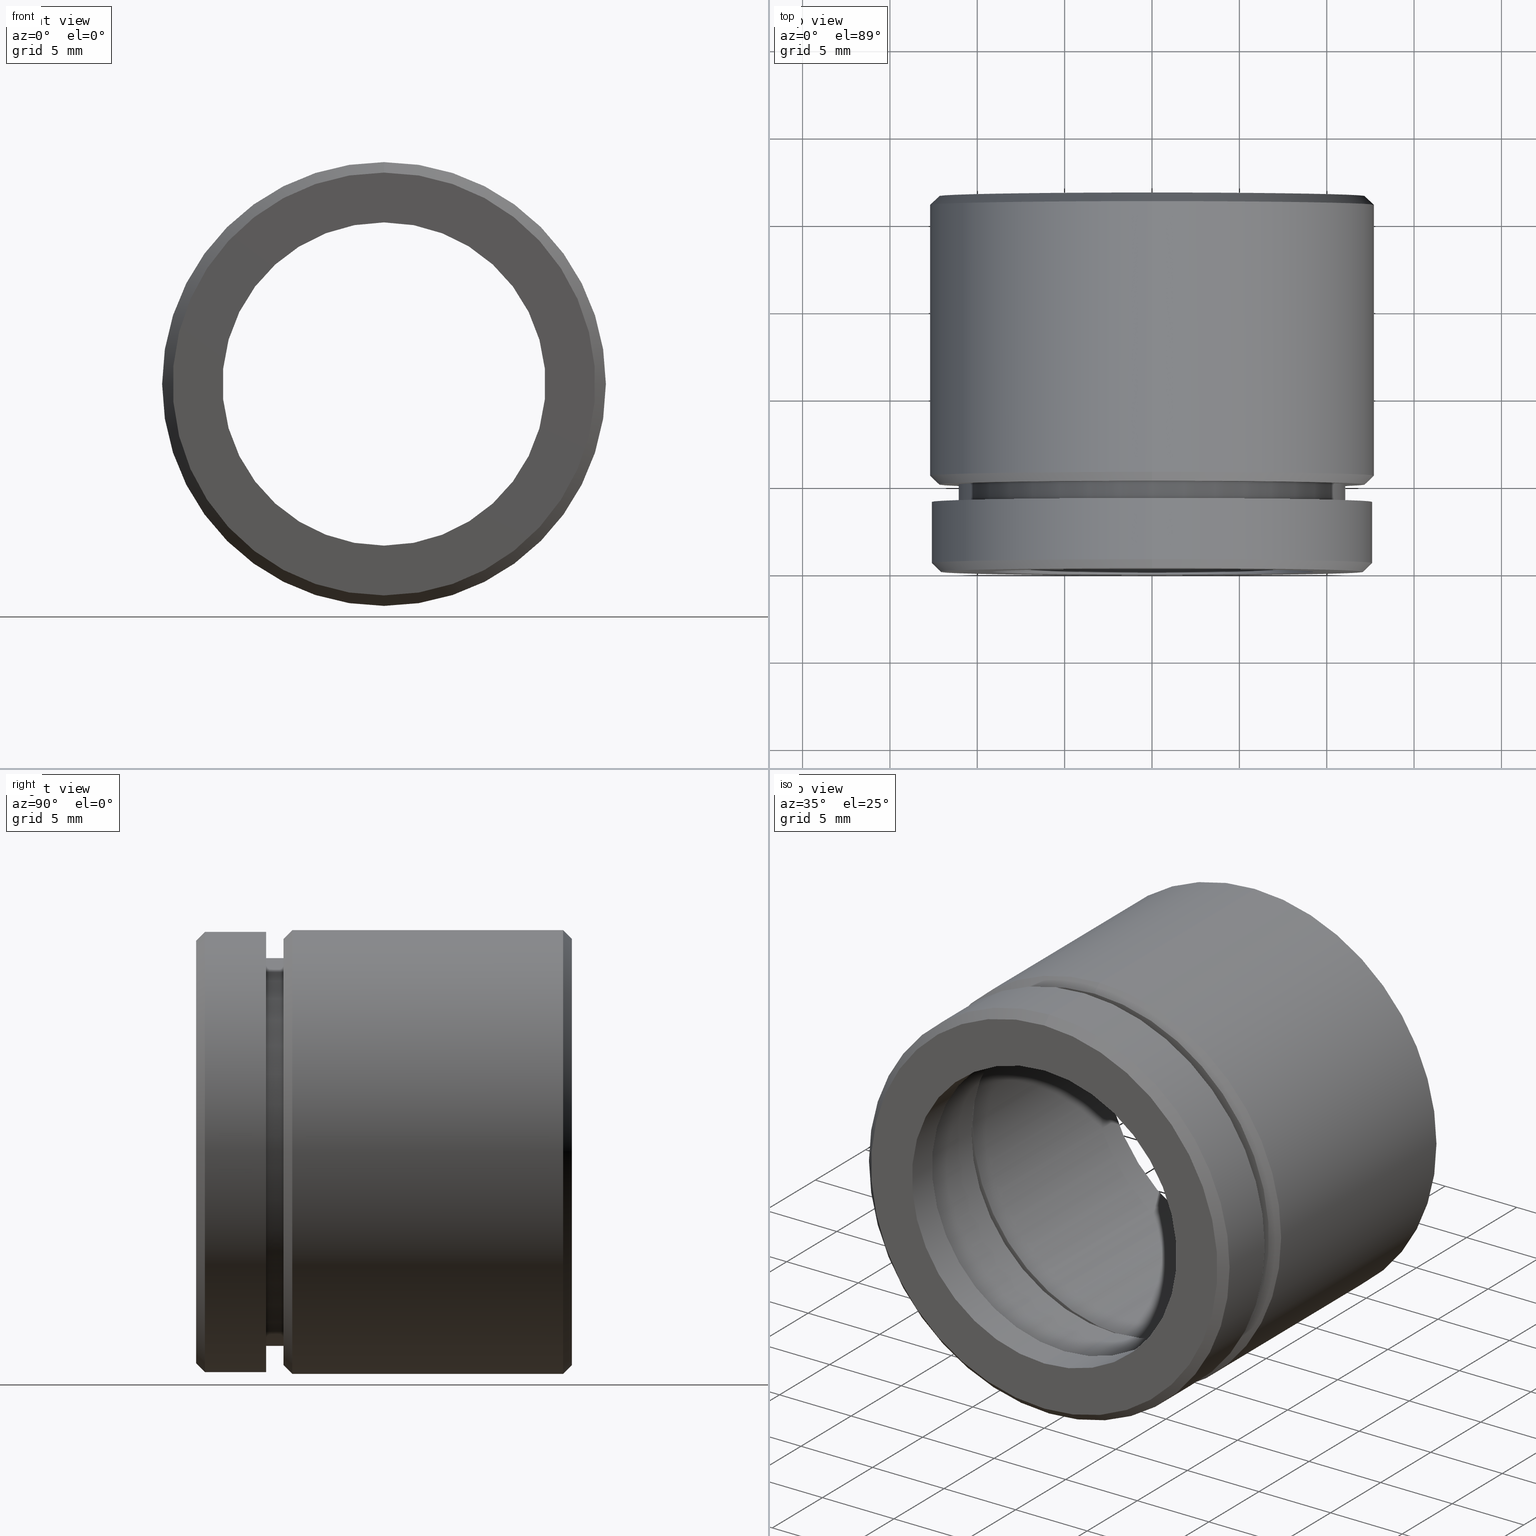
[diagram: canonical four-view strip — front | top / right | iso, engineering-drawing reading convention]
A machine part, canonical four-view strip (front | top / right | iso — engineering-drawing reading convention). The complete STEP part file that produces these views, byte-faithful:
ISO-10303-21;
HEADER;
FILE_DESCRIPTION (( 'STEP AP214' ),
    '1' );
FILE_NAME ('500026.STEP',
    '2019-09-03T08:40:47',
    ( 'user' ),
    ( '΢���й�' ),
    'SwSTEP 2.0',
    'SolidWorks 2016',
    '' );
FILE_SCHEMA (( 'AUTOMOTIVE_DESIGN' ));
ENDSEC;

DATA;
#1 = ORIENTED_EDGE ( 'NONE', *, *, #832, .T. ) ;
#2 = ADVANCED_FACE ( 'NONE', ( #581 ), #28, .F. ) ;
#3 = ORIENTED_EDGE ( 'NONE', *, *, #864, .F. ) ;
#4 = ORIENTED_EDGE ( 'NONE', *, *, #189, .F. ) ;
#5 = DIRECTION ( 'NONE',  ( -0.0000000000000000000, -1.000000000000000000, -0.0000000000000000000 ) ) ;
#6 = LINE ( 'NONE', #720, #195 ) ;
#7 = AXIS2_PLACEMENT_3D ( 'NONE', #103, #585, #84 ) ;
#8 = STYLED_ITEM ( 'NONE', ( #809 ), #772 ) ;
#9 = FILL_AREA_STYLE ('',( #16 ) ) ;
#10 = FACE_OUTER_BOUND ( 'NONE', #632, .T. ) ;
#11 = AXIS2_PLACEMENT_3D ( 'NONE', #368, #265, #62 ) ;
#12 = CARTESIAN_POINT ( 'NONE',  ( 0.0000000000000000000, 4.000000000000000000, 0.0000000000000000000 ) ) ;
#13 = CARTESIAN_POINT ( 'NONE',  ( 0.0000000000000000000, 0.0000000000000000000, -10.00000000000000200 ) ) ;
#14 = ORIENTED_EDGE ( 'NONE', *, *, #704, .T. ) ;
#15 = ORIENTED_EDGE ( 'NONE', *, *, #134, .F. ) ;
#16 = FILL_AREA_STYLE_COLOUR ( '', #658 ) ;
#17 =( LENGTH_UNIT ( ) NAMED_UNIT ( * ) SI_UNIT ( .MILLI., .METRE. ) );
#18 = DIRECTION ( 'NONE',  ( 0.0000000000000000000, 1.000000000000000000, 0.0000000000000000000 ) ) ;
#19 = CYLINDRICAL_SURFACE ( 'NONE', #23, 11.10000000000000000 ) ;
#20 = SURFACE_STYLE_FILL_AREA ( #510 ) ;
#21 = DIRECTION ( 'NONE',  ( -0.0000000000000000000, -1.000000000000000000, -0.0000000000000000000 ) ) ;
#22 = CARTESIAN_POINT ( 'NONE',  ( 0.0000000000000000000, 21.50000000000000000, 0.0000000000000000000 ) ) ;
#23 = AXIS2_PLACEMENT_3D ( 'NONE', #719, #123, #731 ) ;
#24 = CARTESIAN_POINT ( 'NONE',  ( 0.0000000000000000000, 20.99999999999998200, 0.0000000000000000000 ) ) ;
#25 = EDGE_LOOP ( 'NONE', ( #59, #370, #747, #466 ) ) ;
#26 = DIRECTION ( 'NONE',  ( -0.0000000000000000000, 1.000000000000000000, -0.0000000000000000000 ) ) ;
#27 = DIRECTION ( 'NONE',  ( -0.0000000000000000000, -1.000000000000000000, -0.0000000000000000000 ) ) ;
#28 = CYLINDRICAL_SURFACE ( 'NONE', #42, 10.60000000000000100 ) ;
#29 = ADVANCED_FACE ( 'NONE', ( #833 ), #19, .T. ) ;
#30 = UNCERTAINTY_MEASURE_WITH_UNIT (LENGTH_MEASURE( 1.000000000000000100E-005 ), #94, 'distance_accuracy_value', 'NONE');
#31 = DIRECTION ( 'NONE',  ( -0.0000000000000000000, -1.000000000000000000, -0.0000000000000000000 ) ) ;
#32 = DIRECTION ( 'NONE',  ( -0.0000000000000000000, -1.000000000000000000, -0.0000000000000000000 ) ) ;
#33 = APPLICATION_PROTOCOL_DEFINITION ( 'draft international standard', 'automotive_design', 1998, #378 ) ;
#34 = ORIENTED_EDGE ( 'NONE', *, *, #369, .T. ) ;
#35 = DIRECTION ( 'NONE',  ( 0.0000000000000000000, 0.0000000000000000000, -1.000000000000000000 ) ) ;
#36 = VERTEX_POINT ( 'NONE', #282 ) ;
#37 = ORIENTED_EDGE ( 'NONE', *, *, #681, .F. ) ;
#38 = ORIENTED_EDGE ( 'NONE', *, *, #519, .F. ) ;
#39 = ORIENTED_EDGE ( 'NONE', *, *, #591, .T. ) ;
#40 = CARTESIAN_POINT ( 'NONE',  ( 0.0000000000000000000, 2.000000000000000000, 0.0000000000000000000 ) ) ;
#41 = DIRECTION ( 'NONE',  ( -0.0000000000000000000, -1.000000000000000000, -0.0000000000000000000 ) ) ;
#42 = AXIS2_PLACEMENT_3D ( 'NONE', #697, #498, #825 ) ;
#43 = DIRECTION ( 'NONE',  ( 0.0000000000000000000, 0.0000000000000000000, -1.000000000000000000 ) ) ;
#44 = CARTESIAN_POINT ( 'NONE',  ( 0.0000000000000000000, 8.000000000000000000, -10.60000000000000100 ) ) ;
#45 = AXIS2_PLACEMENT_3D ( 'NONE', #381, #643, #286 ) ;
#46 = SURFACE_SIDE_STYLE ('',( #666 ) ) ;
#47 = AXIS2_PLACEMENT_3D ( 'NONE', #578, #101, #571 ) ;
#48 = CARTESIAN_POINT ( 'NONE',  ( 0.0000000000000000000, 20.99999999999999600, -10.60000000000000100 ) ) ;
#49 = VERTEX_POINT ( 'NONE', #735 ) ;
#50 = EDGE_LOOP ( 'NONE', ( #439, #636, #90, #479 ) ) ;
#51 = LINE ( 'NONE', #227, #620 ) ;
#52 = VERTEX_POINT ( 'NONE', #752 ) ;
#53 = ORIENTED_EDGE ( 'NONE', *, *, #453, .F. ) ;
#54 = ORIENTED_EDGE ( 'NONE', *, *, #591, .F. ) ;
#55 = APPLICATION_PROTOCOL_DEFINITION ( 'draft international standard', 'automotive_design', 1998, #451 ) ;
#56 = ORIENTED_EDGE ( 'NONE', *, *, #794, .T. ) ;
#57 = DIRECTION ( 'NONE',  ( 0.0000000000000000000, 0.0000000000000000000, -1.000000000000000000 ) ) ;
#58 = CIRCLE ( 'NONE', #337, 10.60000000000000100 ) ;
#59 = ORIENTED_EDGE ( 'NONE', *, *, #813, .F. ) ;
#60 = CARTESIAN_POINT ( 'NONE',  ( 0.0000000000000000000, 0.0000000000000000000, -11.69999999999999900 ) ) ;
#61 = CONICAL_SURFACE ( 'NONE', #122, 11.09999999999999800, 0.7853981633974447300 ) ;
#62 = DIRECTION ( 'NONE',  ( 0.0000000000000000000, 0.0000000000000000000, -1.000000000000000000 ) ) ;
#63 = AXIS2_PLACEMENT_3D ( 'NONE', #391, #75, #112 ) ;
#64 = AXIS2_PLACEMENT_3D ( 'NONE', #417, #216, #829 ) ;
#65 =( LENGTH_UNIT ( ) NAMED_UNIT ( * ) SI_UNIT ( .MILLI., .METRE. ) );
#66 = AXIS2_PLACEMENT_3D ( 'NONE', #521, #762, #705 ) ;
#67 = CARTESIAN_POINT ( 'NONE',  ( 0.0000000000000000000, 0.0000000000000000000, 0.0000000000000000000 ) ) ;
#68 = EDGE_LOOP ( 'NONE', ( #113, #115, #740, #830 ) ) ;
#69 = CARTESIAN_POINT ( 'NONE',  ( 0.0000000000000000000, 6.999999999999999100, 0.0000000000000000000 ) ) ;
#70 = CIRCLE ( 'NONE', #63, 11.69999999999999800 ) ;
#71 = ADVANCED_FACE ( 'NONE', ( #470 ), #366, .T. ) ;
#72 = CARTESIAN_POINT ( 'NONE',  ( 0.0000000000000000000, 20.99999999999999600, 0.0000000000000000000 ) ) ;
#73 = FACE_OUTER_BOUND ( 'NONE', #68, .T. ) ;
#74 = AXIS2_PLACEMENT_3D ( 'NONE', #667, #677, #638 ) ;
#75 = DIRECTION ( 'NONE',  ( -0.0000000000000000000, -1.000000000000000000, -0.0000000000000000000 ) ) ;
#76 = VECTOR ( 'NONE', #674, 1000.000000000000000 ) ;
#77 = AXIS2_PLACEMENT_3D ( 'NONE', #568, #748, #616 ) ;
#78 = DIRECTION ( 'NONE',  ( -0.0000000000000000000, -1.000000000000000000, -0.0000000000000000000 ) ) ;
#79 = FACE_OUTER_BOUND ( 'NONE', #397, .T. ) ;
#80 =( GEOMETRIC_REPRESENTATION_CONTEXT ( 3 ) GLOBAL_UNCERTAINTY_ASSIGNED_CONTEXT ( ( #641 ) ) GLOBAL_UNIT_ASSIGNED_CONTEXT ( ( #17, #786, #770 ) ) REPRESENTATION_CONTEXT ( 'NONE', 'WORKASPACE' ) );
#81 = CARTESIAN_POINT ( 'NONE',  ( 1.555301434917138400E-015, 20.99999999999998200, 12.69999999999999900 ) ) ;
#82 = CARTESIAN_POINT ( 'NONE',  ( 0.0000000000000000000, 0.0000000000000000000, 0.0000000000000000000 ) ) ;
#83 = FILL_AREA_STYLE ('',( #85 ) ) ;
#84 = DIRECTION ( 'NONE',  ( 0.0000000000000000000, 0.0000000000000000000, 1.000000000000000000 ) ) ;
#85 = FILL_AREA_STYLE_COLOUR ( '', #89 ) ;
#86 = ORIENTED_EDGE ( 'NONE', *, *, #794, .F. ) ;
#87 = CARTESIAN_POINT ( 'NONE',  ( 1.543054966925665100E-015, 0.5000000000000073300, 12.60000000000000000 ) ) ;
#88 =( NAMED_UNIT ( * ) SI_UNIT ( $, .STERADIAN. ) SOLID_ANGLE_UNIT ( ) );
#89 = COLOUR_RGB ( '',1.000000000000000000, 1.000000000000000000, 1.000000000000000000 ) ;
#90 = ORIENTED_EDGE ( 'NONE', *, *, #738, .T. ) ;
#91 = DIRECTION ( 'NONE',  ( 0.0000000000000000000, 1.000000000000000000, 0.0000000000000000000 ) ) ;
#92 = CARTESIAN_POINT ( 'NONE',  ( 0.0000000000000000000, 4.000000000000000000, -12.60000000000000000 ) ) ;
#93 = MECHANICAL_DESIGN_GEOMETRIC_PRESENTATION_REPRESENTATION (  '', ( #172 ), #80 ) ;
#94 =( LENGTH_UNIT ( ) NAMED_UNIT ( * ) SI_UNIT ( .MILLI., .METRE. ) );
#95 = STYLED_ITEM ( 'NONE', ( #614 ), #702 ) ;
#96 = MECHANICAL_DESIGN_GEOMETRIC_PRESENTATION_REPRESENTATION (  '', ( #8 ), #109 ) ;
#97 = CARTESIAN_POINT ( 'NONE',  ( 1.359357947053562000E-015, 21.50000000000000000, -11.09999999999999800 ) ) ;
#98 = CARTESIAN_POINT ( 'NONE',  ( 0.0000000000000000000, 0.5000000000000073300, 0.0000000000000000000 ) ) ;
#99 = VERTEX_POINT ( 'NONE', #87 ) ;
#100 = VERTEX_POINT ( 'NONE', #81 ) ;
#101 = DIRECTION ( 'NONE',  ( 0.0000000000000000000, -1.000000000000000000, -0.0000000000000000000 ) ) ;
#102 = DIRECTION ( 'NONE',  ( 0.0000000000000000000, 0.0000000000000000000, -1.000000000000000000 ) ) ;
#103 = CARTESIAN_POINT ( 'NONE',  ( 0.0000000000000000000, 0.0000000000000000000, 0.0000000000000000000 ) ) ;
#104 = ORIENTED_EDGE ( 'NONE', *, *, #519, .T. ) ;
#105 = EDGE_LOOP ( 'NONE', ( #149, #222, #691, #612 ) ) ;
#106 = CARTESIAN_POINT ( 'NONE',  ( 0.0000000000000000000, 6.999999999999999100, -10.00000000000000400 ) ) ;
#107 = AXIS2_PLACEMENT_3D ( 'NONE', #300, #170, #644 ) ;
#108 = ORIENTED_EDGE ( 'NONE', *, *, #389, .F. ) ;
#109 =( GEOMETRIC_REPRESENTATION_CONTEXT ( 3 ) GLOBAL_UNCERTAINTY_ASSIGNED_CONTEXT ( ( #367 ) ) GLOBAL_UNIT_ASSIGNED_CONTEXT ( ( #541, #272, #88 ) ) REPRESENTATION_CONTEXT ( 'NONE', 'WORKASPACE' ) );
#110 = CIRCLE ( 'NONE', #357, 11.69999999999999900 ) ;
#111 = AXIS2_PLACEMENT_3D ( 'NONE', #67, #169, #584 ) ;
#112 = DIRECTION ( 'NONE',  ( 0.0000000000000000000, 0.0000000000000000000, -1.000000000000000000 ) ) ;
#113 = ORIENTED_EDGE ( 'NONE', *, *, #782, .F. ) ;
#114 = AXIS2_PLACEMENT_3D ( 'NONE', #847, #21, #43 ) ;
#115 = ORIENTED_EDGE ( 'NONE', *, *, #293, .F. ) ;
#116 = DIRECTION ( 'NONE',  ( 0.0000000000000000000, 0.0000000000000000000, -1.000000000000000000 ) ) ;
#117 = VERTEX_POINT ( 'NONE', #316 ) ;
#118 = DIRECTION ( 'NONE',  ( 0.0000000000000000000, 0.0000000000000000000, 1.000000000000000000 ) ) ;
#119 = DIRECTION ( 'NONE',  ( -0.0000000000000000000, -1.000000000000000000, -0.0000000000000000000 ) ) ;
#120 = FACE_OUTER_BOUND ( 'NONE', #150, .T. ) ;
#121 = DIRECTION ( 'NONE',  ( 0.0000000000000000000, 0.0000000000000000000, -1.000000000000000000 ) ) ;
#122 = AXIS2_PLACEMENT_3D ( 'NONE', #743, #228, #118 ) ;
#123 = DIRECTION ( 'NONE',  ( -0.0000000000000000000, -1.000000000000000000, -0.0000000000000000000 ) ) ;
#124 = CARTESIAN_POINT ( 'NONE',  ( 0.0000000000000000000, 5.000000000000000000, 0.0000000000000000000 ) ) ;
#125 = PRESENTATION_LAYER_ASSIGNMENT (  '', '', ( #172 ) ) ;
#126 = CARTESIAN_POINT ( 'NONE',  ( 0.0000000000000000000, 21.50000000000000000, 11.09999999999999800 ) ) ;
#127 = CARTESIAN_POINT ( 'NONE',  ( 0.0000000000000000000, 21.50000000000000000, 0.0000000000000000000 ) ) ;
#128 = CARTESIAN_POINT ( 'NONE',  ( 0.0000000000000000000, 5.500000000000002700, 0.0000000000000000000 ) ) ;
#129 = ORIENTED_EDGE ( 'NONE', *, *, #813, .T. ) ;
#130 = FACE_OUTER_BOUND ( 'NONE', #244, .T. ) ;
#131 = DIRECTION ( 'NONE',  ( 0.0000000000000000000, 0.0000000000000000000, -1.000000000000000000 ) ) ;
#132 = DIRECTION ( 'NONE',  ( -0.0000000000000000000, -1.000000000000000000, -0.0000000000000000000 ) ) ;
#133 = LINE ( 'NONE', #689, #221 ) ;
#134 = EDGE_CURVE ( 'NONE', #745, #187, #538, .T. ) ;
#135 = EDGE_LOOP ( 'NONE', ( #462, #143, #180, #345 ) ) ;
#136 = AXIS2_PLACEMENT_3D ( 'NONE', #258, #440, #327 ) ;
#137 = AXIS2_PLACEMENT_3D ( 'NONE', #238, #18, #502 ) ;
#138 = DIRECTION ( 'NONE',  ( 0.0000000000000000000, 1.000000000000000000, 0.0000000000000000000 ) ) ;
#139 = EDGE_LOOP ( 'NONE', ( #545, #414, #532, #432 ) ) ;
#140 = CARTESIAN_POINT ( 'NONE',  ( 1.359357947053562000E-015, 21.50000000000000000, -11.09999999999999800 ) ) ;
#141 = CARTESIAN_POINT ( 'NONE',  ( 0.0000000000000000000, 5.000000000000000000, 0.0000000000000000000 ) ) ;
#142 = ORIENTED_EDGE ( 'NONE', *, *, #819, .T. ) ;
#143 = ORIENTED_EDGE ( 'NONE', *, *, #859, .T. ) ;
#144 = DIRECTION ( 'NONE',  ( 8.659560562354903300E-017, 0.7071067811865500200, -0.7071067811865451300 ) ) ;
#145 = AXIS2_PLACEMENT_3D ( 'NONE', #167, #119, #102 ) ;
#146 = EDGE_CURVE ( 'NONE', #192, #193, #348, .T. ) ;
#147 = CARTESIAN_POINT ( 'NONE',  ( 1.224646799147353500E-015, 1.999999999999999600, 10.00000000000000200 ) ) ;
#148 = AXIS2_PLACEMENT_3D ( 'NONE', #802, #78, #701 ) ;
#149 = ORIENTED_EDGE ( 'NONE', *, *, #626, .F. ) ;
#150 = EDGE_LOOP ( 'NONE', ( #53, #302, #775, #290 ) ) ;
#151 = EDGE_LOOP ( 'NONE', ( #696, #684, #37, #668 ) ) ;
#152 = EDGE_LOOP ( 'NONE', ( #787, #718 ) ) ;
#153 = DIRECTION ( 'NONE',  ( 0.0000000000000000000, 0.0000000000000000000, 1.000000000000000000 ) ) ;
#154 = DIRECTION ( 'NONE',  ( 0.0000000000000000000, 0.0000000000000000000, -1.000000000000000000 ) ) ;
#155 = ORIENTED_EDGE ( 'NONE', *, *, #652, .T. ) ;
#156 = CYLINDRICAL_SURFACE ( 'NONE', #676, 12.60000000000000000 ) ;
#157 = CARTESIAN_POINT ( 'NONE',  ( 0.0000000000000000000, 21.50000000000000000, 0.0000000000000000000 ) ) ;
#158 = DIRECTION ( 'NONE',  ( -0.0000000000000000000, -1.000000000000000000, -0.0000000000000000000 ) ) ;
#159 = CARTESIAN_POINT ( 'NONE',  ( 0.0000000000000000000, 0.0000000000000000000, -12.69999999999999900 ) ) ;
#160 = AXIS2_PLACEMENT_3D ( 'NONE', #181, #605, #319 ) ;
#161 = DIRECTION ( 'NONE',  ( 0.0000000000000000000, 1.000000000000000000, 0.0000000000000000000 ) ) ;
#162 = MECHANICAL_DESIGN_GEOMETRIC_PRESENTATION_REPRESENTATION (  '', ( #95 ), #640 ) ;
#163 = SURFACE_SIDE_STYLE ('',( #182 ) ) ;
#164 = EDGE_CURVE ( 'NONE', #758, #706, #418, .T. ) ;
#165 = DIRECTION ( 'NONE',  ( -0.0000000000000000000, -1.000000000000000000, -0.0000000000000000000 ) ) ;
#166 = DIRECTION ( 'NONE',  ( 0.0000000000000000000, 0.0000000000000000000, -1.000000000000000000 ) ) ;
#167 = CARTESIAN_POINT ( 'NONE',  ( 0.0000000000000000000, 0.0000000000000000000, 0.0000000000000000000 ) ) ;
#168 = DIRECTION ( 'NONE',  ( -0.0000000000000000000, -1.000000000000000000, -0.0000000000000000000 ) ) ;
#169 = DIRECTION ( 'NONE',  ( 0.0000000000000000000, 1.000000000000000000, 0.0000000000000000000 ) ) ;
#170 = DIRECTION ( 'NONE',  ( -0.0000000000000000000, -1.000000000000000000, -0.0000000000000000000 ) ) ;
#171 = VERTEX_POINT ( 'NONE', #540 ) ;
#172 = STYLED_ITEM ( 'NONE', ( #602 ), #2 ) ;
#173 = DIRECTION ( 'NONE',  ( 8.659560562354979700E-017, -0.7071067811865439100, 0.7071067811865512400 ) ) ;
#174 = SURFACE_STYLE_FILL_AREA ( #651 ) ;
#175 = AXIS2_PLACEMENT_3D ( 'NONE', #340, #761, #154 ) ;
#176 =( GEOMETRIC_REPRESENTATION_CONTEXT ( 3 ) GLOBAL_UNCERTAINTY_ASSIGNED_CONTEXT ( ( #284 ) ) GLOBAL_UNIT_ASSIGNED_CONTEXT ( ( #313, #592, #595 ) ) REPRESENTATION_CONTEXT ( 'NONE', 'WORKASPACE' ) );
#177 = VECTOR ( 'NONE', #377, 1000.000000000000000 ) ;
#178 = VECTOR ( 'NONE', #144, 1000.000000000000100 ) ;
#179 = ORIENTED_EDGE ( 'NONE', *, *, #820, .F. ) ;
#180 = ORIENTED_EDGE ( 'NONE', *, *, #389, .T. ) ;
#181 = CARTESIAN_POINT ( 'NONE',  ( 10.60000000000000100, 8.000000000000000000, 0.0000000000000000000 ) ) ;
#182 = SURFACE_STYLE_FILL_AREA ( #83 ) ;
#183 = ORIENTED_EDGE ( 'NONE', *, *, #807, .F. ) ;
#184 = AXIS2_PLACEMENT_3D ( 'NONE', #330, #343, #815 ) ;
#185 = CARTESIAN_POINT ( 'NONE',  ( 1.494069094959770900E-015, 5.000000000000000000, -12.19999999999999900 ) ) ;
#186 = DIRECTION ( 'NONE',  ( 0.0000000000000000000, 0.0000000000000000000, -1.000000000000000000 ) ) ;
#187 = VERTEX_POINT ( 'NONE', #861 ) ;
#188 = DIRECTION ( 'NONE',  ( -0.0000000000000000000, -1.000000000000000000, -0.0000000000000000000 ) ) ;
#189 = EDGE_CURVE ( 'NONE', #661, #610, #627, .T. ) ;
#190 = CARTESIAN_POINT ( 'NONE',  ( 0.0000000000000000000, 5.000000000000000000, 0.0000000000000000000 ) ) ;
#191 = AXIS2_PLACEMENT_3D ( 'NONE', #323, #188, #186 ) ;
#192 = VERTEX_POINT ( 'NONE', #48 ) ;
#193 = VERTEX_POINT ( 'NONE', #44 ) ;
#194 = ORIENTED_EDGE ( 'NONE', *, *, #400, .F. ) ;
#195 = VECTOR ( 'NONE', #388, 1000.000000000000000 ) ;
#196 = LINE ( 'NONE', #599, #714 ) ;
#197 = CARTESIAN_POINT ( 'NONE',  ( 0.0000000000000000000, 5.000000000000000000, 0.0000000000000000000 ) ) ;
#198 = CIRCLE ( 'NONE', #476, 9.250000000000000000 ) ;
#199 = SURFACE_STYLE_USAGE ( .BOTH. , #797 ) ;
#200 = VERTEX_POINT ( 'NONE', #97 ) ;
#201 = CARTESIAN_POINT ( 'NONE',  ( 1.132798289211301700E-015, 2.000000000000000000, 9.250000000000000000 ) ) ;
#202 = AXIS2_PLACEMENT_3D ( 'NONE', #278, #724, #553 ) ;
#203 = STYLED_ITEM ( 'NONE', ( #863 ), #267 ) ;
#204 = CIRCLE ( 'NONE', #535, 10.60000000000000100 ) ;
#205 = EDGE_LOOP ( 'NONE', ( #380, #1, #383, #455 ) ) ;
#206 = EDGE_CURVE ( 'NONE', #610, #661, #598, .T. ) ;
#207 = CARTESIAN_POINT ( 'NONE',  ( 0.0000000000000000000, 5.000000000000000000, 12.19999999999999900 ) ) ;
#208 = CARTESIAN_POINT ( 'NONE',  ( 0.0000000000000000000, 8.000000000000000000, 0.0000000000000000000 ) ) ;
#209 = DIRECTION ( 'NONE',  ( 0.0000000000000000000, 0.0000000000000000000, -1.000000000000000000 ) ) ;
#210 = DIRECTION ( 'NONE',  ( -0.0000000000000000000, -1.000000000000000000, -0.0000000000000000000 ) ) ;
#211 = ORIENTED_EDGE ( 'NONE', *, *, #679, .F. ) ;
#212 = DIRECTION ( 'NONE',  ( -0.0000000000000000000, -1.000000000000000000, -0.0000000000000000000 ) ) ;
#213 = FACE_BOUND ( 'NONE', #431, .T. ) ;
#214 = VERTEX_POINT ( 'NONE', #534 ) ;
#215 = ORIENTED_EDGE ( 'NONE', *, *, #846, .F. ) ;
#216 = DIRECTION ( 'NONE',  ( -0.0000000000000000000, -1.000000000000000000, -0.0000000000000000000 ) ) ;
#217 = FILL_AREA_STYLE_COLOUR ( '', #385 ) ;
#218 = CARTESIAN_POINT ( 'NONE',  ( 0.0000000000000000000, 0.0000000000000000000, -12.60000000000000000 ) ) ;
#219 = AXIS2_PLACEMENT_3D ( 'NONE', #127, #158, #791 ) ;
#220 = EDGE_LOOP ( 'NONE', ( #788, #665 ) ) ;
#221 = VECTOR ( 'NONE', #662, 1000.000000000000000 ) ;
#222 = ORIENTED_EDGE ( 'NONE', *, *, #730, .T. ) ;
#223 = DIRECTION ( 'NONE',  ( 0.0000000000000000000, 0.0000000000000000000, -1.000000000000000000 ) ) ;
#224 = VERTEX_POINT ( 'NONE', #497 ) ;
#225 = ORIENTED_EDGE ( 'NONE', *, *, #237, .T. ) ;
#226 = VERTEX_POINT ( 'NONE', #518 ) ;
#227 = CARTESIAN_POINT ( 'NONE',  ( 0.0000000000000000000, 21.50000000000000000, 11.09999999999999800 ) ) ;
#228 = DIRECTION ( 'NONE',  ( -0.0000000000000000000, 1.000000000000000000, -0.0000000000000000000 ) ) ;
#229 = CYLINDRICAL_SURFACE ( 'NONE', #434, 11.69999999999999900 ) ;
#230 =( NAMED_UNIT ( * ) SI_UNIT ( $, .STERADIAN. ) SOLID_ANGLE_UNIT ( ) );
#231 = PLANE ( 'NONE',  #137 ) ;
#232 = AXIS2_PLACEMENT_3D ( 'NONE', #262, #537, #856 ) ;
#233 = EDGE_LOOP ( 'NONE', ( #392, #259 ) ) ;
#234 = PRESENTATION_LAYER_ASSIGNMENT (  '', '', ( #8 ) ) ;
#235 = FACE_OUTER_BOUND ( 'NONE', #292, .T. ) ;
#236 = EDGE_LOOP ( 'NONE', ( #778, #225 ) ) ;
#237 = EDGE_CURVE ( 'NONE', #685, #117, #351, .T. ) ;
#238 = CARTESIAN_POINT ( 'NONE',  ( 12.60000000000000000, 4.000000000000000000, 0.0000000000000000000 ) ) ;
#239 = VECTOR ( 'NONE', #306, 1000.000000000000000 ) ;
#240 = DIRECTION ( 'NONE',  ( 0.0000000000000000000, 0.0000000000000000000, -1.000000000000000000 ) ) ;
#241 = AXIS2_PLACEMENT_3D ( 'NONE', #128, #746, #587 ) ;
#242 = DIRECTION ( 'NONE',  ( 1.000000000000000000, 0.0000000000000000000, 0.0000000000000000000 ) ) ;
#243 = CIRCLE ( 'NONE', #191, 9.250000000000000000 ) ;
#244 = EDGE_LOOP ( 'NONE', ( #822, #4, #769, #867 ) ) ;
#245 = EDGE_LOOP ( 'NONE', ( #15, #38 ) ) ;
#246 = AXIS2_PLACEMENT_3D ( 'NONE', #621, #784, #700 ) ;
#247 = AXIS2_PLACEMENT_3D ( 'NONE', #646, #804, #514 ) ;
#248 = FACE_BOUND ( 'NONE', #395, .T. ) ;
#249 = EDGE_CURVE ( 'NONE', #480, #359, #472, .T. ) ;
#250 = DIRECTION ( 'NONE',  ( 0.0000000000000000000, 0.0000000000000000000, -1.000000000000000000 ) ) ;
#251 = FILL_AREA_STYLE ('',( #356 ) ) ;
#252 = ORIENTED_EDGE ( 'NONE', *, *, #437, .F. ) ;
#253 = DIRECTION ( 'NONE',  ( -0.0000000000000000000, -1.000000000000000000, -0.0000000000000000000 ) ) ;
#254 = CIRCLE ( 'NONE', #622, 12.60000000000000000 ) ;
#255 = DIRECTION ( 'NONE',  ( -0.0000000000000000000, -1.000000000000000000, -0.0000000000000000000 ) ) ;
#256 = EDGE_CURVE ( 'NONE', #404, #529, #569, .T. ) ;
#257 = PLANE ( 'NONE',  #47 ) ;
#258 = CARTESIAN_POINT ( 'NONE',  ( 0.0000000000000000000, 0.0000000000000000000, 0.0000000000000000000 ) ) ;
#259 = ORIENTED_EDGE ( 'NONE', *, *, #206, .T. ) ;
#260 = ORIENTED_EDGE ( 'NONE', *, *, #868, .T. ) ;
#261 =( NAMED_UNIT ( * ) PLANE_ANGLE_UNIT ( ) SI_UNIT ( $, .RADIAN. ) );
#262 = CARTESIAN_POINT ( 'NONE',  ( 0.0000000000000000000, 0.0000000000000000000, 0.0000000000000000000 ) ) ;
#263 = ADVANCED_FACE ( 'NONE', ( #754 ), #792, .T. ) ;
#264 = CARTESIAN_POINT ( 'NONE',  ( 0.0000000000000000000, 0.0000000000000000000, 0.0000000000000000000 ) ) ;
#265 = DIRECTION ( 'NONE',  ( -0.0000000000000000000, -1.000000000000000000, -0.0000000000000000000 ) ) ;
#266 = DIRECTION ( 'NONE',  ( 0.0000000000000000000, 0.0000000000000000000, 1.000000000000000000 ) ) ;
#267 = ADVANCED_BREP_SHAPE_REPRESENTATION ( '500026', ( #335, #855 ), #517 ) ;
#268 = AXIS2_PLACEMENT_3D ( 'NONE', #799, #504, #349 ) ;
#269 = LINE ( 'NONE', #473, #411 ) ;
#270 = DIRECTION ( 'NONE',  ( -0.0000000000000000000, -1.000000000000000000, -0.0000000000000000000 ) ) ;
#271 = PRESENTATION_STYLE_ASSIGNMENT (( #806 ) ) ;
#272 =( NAMED_UNIT ( * ) PLANE_ANGLE_UNIT ( ) SI_UNIT ( $, .RADIAN. ) );
#273 = EDGE_LOOP ( 'NONE', ( #491, #558, #608, #260 ) ) ;
#274 = EDGE_CURVE ( 'NONE', #99, #359, #305, .T. ) ;
#275 = CYLINDRICAL_SURFACE ( 'NONE', #175, 12.69999999999999900 ) ;
#276 = DIRECTION ( 'NONE',  ( 0.0000000000000000000, 0.0000000000000000000, -1.000000000000000000 ) ) ;
#277 = DIRECTION ( 'NONE',  ( 0.0000000000000000000, 0.0000000000000000000, -1.000000000000000000 ) ) ;
#278 = CARTESIAN_POINT ( 'NONE',  ( 0.0000000000000000000, 0.0000000000000000000, 0.0000000000000000000 ) ) ;
#279 = ORIENTED_EDGE ( 'NONE', *, *, #415, .F. ) ;
#280 = CIRCLE ( 'NONE', #413, 12.69999999999999900 ) ;
#281 = CARTESIAN_POINT ( 'NONE',  ( 0.0000000000000000000, 0.0000000000000000000, -9.250000000000000000 ) ) ;
#282 = CARTESIAN_POINT ( 'NONE',  ( 0.0000000000000000000, 5.500000000000002700, -12.69999999999999900 ) ) ;
#283 = VERTEX_POINT ( 'NONE', #670 ) ;
#284 = UNCERTAINTY_MEASURE_WITH_UNIT (LENGTH_MEASURE( 1.000000000000000100E-005 ), #313, 'distance_accuracy_value', 'NONE');
#285 = CARTESIAN_POINT ( 'NONE',  ( 0.0000000000000000000, 20.99999999999999600, 0.0000000000000000000 ) ) ;
#286 = DIRECTION ( 'NONE',  ( 0.0000000000000000000, -0.0000000000000000000, 1.000000000000000000 ) ) ;
#287 = LINE ( 'NONE', #13, #527 ) ;
#288 = ADVANCED_FACE ( 'NONE', ( #654, #213 ), #733, .T. ) ;
#289 = AXIS2_PLACEMENT_3D ( 'NONE', #617, #26, #310 ) ;
#290 = ORIENTED_EDGE ( 'NONE', *, *, #566, .F. ) ;
#291 = AXIS2_PLACEMENT_3D ( 'NONE', #157, #301, #266 ) ;
#292 = EDGE_LOOP ( 'NONE', ( #211, #304, #838, #858 ) ) ;
#293 = EDGE_CURVE ( 'NONE', #564, #567, #515, .T. ) ;
#294 = ORIENTED_EDGE ( 'NONE', *, *, #704, .F. ) ;
#295 = CIRCLE ( 'NONE', #386, 11.10000000000000000 ) ;
#296 = PLANE ( 'NONE',  #160 ) ;
#297 = SURFACE_SIDE_STYLE ('',( #20 ) ) ;
#298 = CIRCLE ( 'NONE', #329, 12.09999999999999400 ) ;
#299 = CARTESIAN_POINT ( 'NONE',  ( 0.0000000000000000000, 1.999999999999999600, -10.00000000000000200 ) ) ;
#300 = CARTESIAN_POINT ( 'NONE',  ( 0.0000000000000000000, 0.0000000000000000000, 0.0000000000000000000 ) ) ;
#301 = DIRECTION ( 'NONE',  ( -0.0000000000000000000, -1.000000000000000000, -0.0000000000000000000 ) ) ;
#302 = ORIENTED_EDGE ( 'NONE', *, *, #679, .T. ) ;
#303 = EDGE_CURVE ( 'NONE', #529, #404, #734, .T. ) ;
#304 = ORIENTED_EDGE ( 'NONE', *, *, #730, .F. ) ;
#305 = CIRCLE ( 'NONE', #742, 12.60000000000000000 ) ;
#306 = DIRECTION ( 'NONE',  ( -0.0000000000000000000, -1.000000000000000000, -0.0000000000000000000 ) ) ;
#307 = STYLED_ITEM ( 'NONE', ( #271 ), #263 ) ;
#308 = AXIS2_PLACEMENT_3D ( 'NONE', #72, #560, #565 ) ;
#309 = CIRCLE ( 'NONE', #202, 9.250000000000000000 ) ;
#310 = DIRECTION ( 'NONE',  ( 0.0000000000000000000, 0.0000000000000000000, 1.000000000000000000 ) ) ;
#311 = DIRECTION ( 'NONE',  ( -0.0000000000000000000, 1.000000000000000000, -0.0000000000000000000 ) ) ;
#312 = DIRECTION ( 'NONE',  ( -0.0000000000000000000, -1.000000000000000000, -0.0000000000000000000 ) ) ;
#313 =( LENGTH_UNIT ( ) NAMED_UNIT ( * ) SI_UNIT ( .MILLI., .METRE. ) );
#314 = CARTESIAN_POINT ( 'NONE',  ( 0.0000000000000000000, 0.5000000000000073300, 0.0000000000000000000 ) ) ;
#315 = CARTESIAN_POINT ( 'NONE',  ( 1.432836755002403100E-015, 0.0000000000000000000, 11.69999999999999900 ) ) ;
#316 = CARTESIAN_POINT ( 'NONE',  ( 0.0000000000000000000, 4.000000000000000000, -11.10000000000000000 ) ) ;
#317 = ORIENTED_EDGE ( 'NONE', *, *, #846, .T. ) ;
#318 = CONICAL_SURFACE ( 'NONE', #588, 12.19999999999999900, 0.7853981633974466100 ) ;
#319 = DIRECTION ( 'NONE',  ( 0.0000000000000000000, 0.0000000000000000000, -1.000000000000000000 ) ) ;
#320 =( NAMED_UNIT ( * ) SI_UNIT ( $, .STERADIAN. ) SOLID_ANGLE_UNIT ( ) );
#321 = AXIS2_PLACEMENT_3D ( 'NONE', #98, #405, #116 ) ;
#322 = SURFACE_STYLE_FILL_AREA ( #695 ) ;
#323 = CARTESIAN_POINT ( 'NONE',  ( 0.0000000000000000000, 0.0000000000000000000, 0.0000000000000000000 ) ) ;
#324 = EDGE_CURVE ( 'NONE', #403, #555, #467, .T. ) ;
#325 = DIRECTION ( 'NONE',  ( 0.0000000000000000000, -0.7071067811865439100, -0.7071067811865512400 ) ) ;
#326 = EDGE_LOOP ( 'NONE', ( #496, #56 ) ) ;
#327 = DIRECTION ( 'NONE',  ( 0.0000000000000000000, 0.0000000000000000000, -1.000000000000000000 ) ) ;
#328 = FACE_OUTER_BOUND ( 'NONE', #593, .T. ) ;
#329 = AXIS2_PLACEMENT_3D ( 'NONE', #831, #709, #131 ) ;
#330 = CARTESIAN_POINT ( 'NONE',  ( 0.0000000000000000000, 20.99999999999998200, 0.0000000000000000000 ) ) ;
#331 = FACE_OUTER_BOUND ( 'NONE', #50, .T. ) ;
#332 = ADVANCED_FACE ( 'NONE', ( #710, #523 ), #580, .T. ) ;
#333 = LINE ( 'NONE', #218, #353 ) ;
#334 = CIRCLE ( 'NONE', #114, 12.60000000000000000 ) ;
#335 = MANIFOLD_SOLID_BREP ( '����1', #721 ) ;
#336 = DIRECTION ( 'NONE',  ( 0.0000000000000000000, 0.7071067811865500200, 0.7071067811865451300 ) ) ;
#337 = AXIS2_PLACEMENT_3D ( 'NONE', #285, #311, #487 ) ;
#338 = AXIS2_PLACEMENT_3D ( 'NONE', #874, #849, #153 ) ;
#339 = DIRECTION ( 'NONE',  ( 0.0000000000000000000, 1.000000000000000000, 0.0000000000000000000 ) ) ;
#340 = CARTESIAN_POINT ( 'NONE',  ( 0.0000000000000000000, 0.0000000000000000000, 0.0000000000000000000 ) ) ;
#341 = UNCERTAINTY_MEASURE_WITH_UNIT (LENGTH_MEASURE( 1.000000000000000100E-005 ), #344, 'distance_accuracy_value', 'NONE');
#342 = CARTESIAN_POINT ( 'NONE',  ( 0.0000000000000000000, 0.5000000000000073300, -12.60000000000000000 ) ) ;
#343 = DIRECTION ( 'NONE',  ( -0.0000000000000000000, -1.000000000000000000, -0.0000000000000000000 ) ) ;
#344 =( LENGTH_UNIT ( ) NAMED_UNIT ( * ) SI_UNIT ( .MILLI., .METRE. ) );
#345 = ORIENTED_EDGE ( 'NONE', *, *, #826, .F. ) ;
#346 = LINE ( 'NONE', #433, #503 ) ;
#347 = ORIENTED_EDGE ( 'NONE', *, *, #206, .F. ) ;
#348 = LINE ( 'NONE', #860, #625 ) ;
#349 = DIRECTION ( 'NONE',  ( 0.0000000000000000000, 0.0000000000000000000, -1.000000000000000000 ) ) ;
#350 = CARTESIAN_POINT ( 'NONE',  ( 0.0000000000000000000, 20.99999999999998200, -12.69999999999999900 ) ) ;
#351 = CIRCLE ( 'NONE', #246, 11.10000000000000000 ) ;
#352 = ADVANCED_FACE ( 'NONE', ( #331 ), #318, .T. ) ;
#353 = VECTOR ( 'NONE', #165, 1000.000000000000000 ) ;
#354 = CIRCLE ( 'NONE', #219, 11.09999999999999800 ) ;
#355 = CIRCLE ( 'NONE', #308, 10.60000000000000100 ) ;
#356 = FILL_AREA_STYLE_COLOUR ( '', #866 ) ;
#357 = AXIS2_PLACEMENT_3D ( 'NONE', #604, #168, #240 ) ;
#358 = CONICAL_SURFACE ( 'NONE', #184, 12.69999999999999900, 0.7853981633974536100 ) ;
#359 = VERTEX_POINT ( 'NONE', #342 ) ;
#360 = CARTESIAN_POINT ( 'NONE',  ( 0.0000000000000000000, 0.0000000000000000000, 0.0000000000000000000 ) ) ;
#361 = CARTESIAN_POINT ( 'NONE',  ( 0.0000000000000000000, 0.0000000000000000000, 0.0000000000000000000 ) ) ;
#362 = VERTEX_POINT ( 'NONE', #201 ) ;
#363 = DIRECTION ( 'NONE',  ( -0.0000000000000000000, -1.000000000000000000, -0.0000000000000000000 ) ) ;
#364 = VERTEX_POINT ( 'NONE', #785 ) ;
#365 = CARTESIAN_POINT ( 'NONE',  ( 0.0000000000000000000, 2.000000000000000000, -9.250000000000000000 ) ) ;
#366 = CONICAL_SURFACE ( 'NONE', #111, 12.09999999999999400, 0.7853981633974466100 ) ;
#367 = UNCERTAINTY_MEASURE_WITH_UNIT (LENGTH_MEASURE( 1.000000000000000100E-005 ), #541, 'distance_accuracy_value', 'NONE');
#368 = CARTESIAN_POINT ( 'NONE',  ( 0.0000000000000000000, 1.999999999999999600, 0.0000000000000000000 ) ) ;
#369 = EDGE_CURVE ( 'NONE', #671, #171, #870, .T. ) ;
#370 = ORIENTED_EDGE ( 'NONE', *, *, #249, .T. ) ;
#371 = EDGE_LOOP ( 'NONE', ( #842, #596, #749, #419 ) ) ;
#372 = EDGE_LOOP ( 'NONE', ( #34, #601 ) ) ;
#373 = COLOUR_RGB ( '',1.000000000000000000, 1.000000000000000000, 1.000000000000000000 ) ;
#374 = SURFACE_STYLE_FILL_AREA ( #9 ) ;
#375 = DIRECTION ( 'NONE',  ( 0.0000000000000000000, 0.0000000000000000000, -1.000000000000000000 ) ) ;
#376 = CYLINDRICAL_SURFACE ( 'NONE', #107, 9.250000000000000000 ) ;
#377 = DIRECTION ( 'NONE',  ( -0.0000000000000000000, -1.000000000000000000, -0.0000000000000000000 ) ) ;
#378 = APPLICATION_CONTEXT ( 'automotive_design' ) ;
#379 = FACE_OUTER_BOUND ( 'NONE', #245, .T. ) ;
#380 = ORIENTED_EDGE ( 'NONE', *, *, #859, .F. ) ;
#381 = CARTESIAN_POINT ( 'NONE',  ( 11.69999999999999900, 6.999999999999999100, 0.0000000000000000000 ) ) ;
#382 = ORIENTED_EDGE ( 'NONE', *, *, #293, .T. ) ;
#383 = ORIENTED_EDGE ( 'NONE', *, *, #826, .T. ) ;
#384 = CARTESIAN_POINT ( 'NONE',  ( 1.432836755002402900E-015, 8.000000000000000000, 11.69999999999999800 ) ) ;
#385 = COLOUR_RGB ( '',1.000000000000000000, 1.000000000000000000, 1.000000000000000000 ) ;
#386 = AXIS2_PLACEMENT_3D ( 'NONE', #124, #132, #443 ) ;
#387 = CARTESIAN_POINT ( 'NONE',  ( 1.224646799147353700E-015, 6.999999999999999100, 10.00000000000000400 ) ) ;
#388 = DIRECTION ( 'NONE',  ( -0.0000000000000000000, -1.000000000000000000, -0.0000000000000000000 ) ) ;
#389 = EDGE_CURVE ( 'NONE', #410, #36, #816, .T. ) ;
#390 = CARTESIAN_POINT ( 'NONE',  ( 0.0000000000000000000, 21.50000000000000000, -12.19999999999998000 ) ) ;
#391 = CARTESIAN_POINT ( 'NONE',  ( 0.0000000000000000000, 8.000000000000000000, 0.0000000000000000000 ) ) ;
#392 = ORIENTED_EDGE ( 'NONE', *, *, #189, .T. ) ;
#393 = CIRCLE ( 'NONE', #338, 12.69999999999999900 ) ;
#394 = ORIENTED_EDGE ( 'NONE', *, *, #832, .F. ) ;
#395 = EDGE_LOOP ( 'NONE', ( #464, #554 ) ) ;
#396 = PRESENTATION_STYLE_ASSIGNMENT (( #630 ) ) ;
#397 = EDGE_LOOP ( 'NONE', ( #14, #597, #448, #634 ) ) ;
#398 = FACE_OUTER_BOUND ( 'NONE', #520, .T. ) ;
#399 = CIRCLE ( 'NONE', #723, 10.00000000000000200 ) ;
#400 = EDGE_CURVE ( 'NONE', #193, #226, #204, .T. ) ;
#401 = ORIENTED_EDGE ( 'NONE', *, *, #463, .T. ) ;
#402 = AXIS2_PLACEMENT_3D ( 'NONE', #869, #27, #482 ) ;
#403 = VERTEX_POINT ( 'NONE', #365 ) ;
#404 = VERTEX_POINT ( 'NONE', #390 ) ;
#405 = DIRECTION ( 'NONE',  ( 0.0000000000000000000, 1.000000000000000000, 0.0000000000000000000 ) ) ;
#406 = ORIENTED_EDGE ( 'NONE', *, *, #750, .F. ) ;
#407 = DIRECTION ( 'NONE',  ( 0.0000000000000000000, 1.000000000000000000, 0.0000000000000000000 ) ) ;
#408 =( NAMED_UNIT ( * ) PLANE_ANGLE_UNIT ( ) SI_UNIT ( $, .RADIAN. ) );
#409 = ADVANCED_FACE ( 'NONE', ( #586 ), #229, .F. ) ;
#410 = VERTEX_POINT ( 'NONE', #779 ) ;
#411 = VECTOR ( 'NONE', #41, 1000.000000000000000 ) ;
#412 = ORIENTED_EDGE ( 'NONE', *, *, #582, .T. ) ;
#413 = AXIS2_PLACEMENT_3D ( 'NONE', #698, #212, #862 ) ;
#414 = ORIENTED_EDGE ( 'NONE', *, *, #807, .T. ) ;
#415 = EDGE_CURVE ( 'NONE', #512, #224, #295, .T. ) ;
#416 = CARTESIAN_POINT ( 'NONE',  ( 1.543054966925665100E-015, 0.0000000000000000000, 12.60000000000000000 ) ) ;
#417 = CARTESIAN_POINT ( 'NONE',  ( 0.0000000000000000000, 5.000000000000000000, 0.0000000000000000000 ) ) ;
#418 = CIRCLE ( 'NONE', #11, 10.00000000000000200 ) ;
#419 = ORIENTED_EDGE ( 'NONE', *, *, #868, .F. ) ;
#420 = DIRECTION ( 'NONE',  ( -0.0000000000000000000, -1.000000000000000000, -0.0000000000000000000 ) ) ;
#421 = FACE_OUTER_BOUND ( 'NONE', #446, .T. ) ;
#422 = AXIS2_PLACEMENT_3D ( 'NONE', #444, #783, #711 ) ;
#423 = COLOUR_RGB ( '',1.000000000000000000, 1.000000000000000000, 1.000000000000000000 ) ;
#424 = CARTESIAN_POINT ( 'NONE',  ( 1.524685264938453700E-015, 21.50000000000000000, 12.19999999999998000 ) ) ;
#425 = CYLINDRICAL_SURFACE ( 'NONE', #136, 9.250000000000000000 ) ;
#426 = ORIENTED_EDGE ( 'NONE', *, *, #546, .T. ) ;
#427 = ORIENTED_EDGE ( 'NONE', *, *, #738, .F. ) ;
#428 = CYLINDRICAL_SURFACE ( 'NONE', #268, 11.69999999999999900 ) ;
#429 = ORIENTED_EDGE ( 'NONE', *, *, #819, .F. ) ;
#430 = ORIENTED_EDGE ( 'NONE', *, *, #146, .F. ) ;
#431 = EDGE_LOOP ( 'NONE', ( #279, #183 ) ) ;
#432 = ORIENTED_EDGE ( 'NONE', *, *, #237, .F. ) ;
#433 = CARTESIAN_POINT ( 'NONE',  ( 1.555301434917138400E-015, 20.99999999999998200, 12.69999999999999900 ) ) ;
#434 = AXIS2_PLACEMENT_3D ( 'NONE', #360, #312, #653 ) ;
#435 = AXIS2_PLACEMENT_3D ( 'NONE', #24, #732, #276 ) ;
#436 = CARTESIAN_POINT ( 'NONE',  ( 1.481822626968296700E-015, 0.0000000000000000000, -12.09999999999999400 ) ) ;
#437 = EDGE_CURVE ( 'NONE', #171, #671, #556, .T. ) ;
#438 = CARTESIAN_POINT ( 'NONE',  ( 0.0000000000000000000, 6.999999999999999100, -11.69999999999999900 ) ) ;
#439 = ORIENTED_EDGE ( 'NONE', *, *, #664, .F. ) ;
#440 = DIRECTION ( 'NONE',  ( -0.0000000000000000000, -1.000000000000000000, -0.0000000000000000000 ) ) ;
#441 = ORIENTED_EDGE ( 'NONE', *, *, #324, .F. ) ;
#442 = EDGE_LOOP ( 'NONE', ( #347, #781, #613, #544 ) ) ;
#443 = DIRECTION ( 'NONE',  ( 0.0000000000000000000, 0.0000000000000000000, -1.000000000000000000 ) ) ;
#444 = CARTESIAN_POINT ( 'NONE',  ( 0.0000000000000000000, 0.0000000000000000000, 0.0000000000000000000 ) ) ;
#445 = DIRECTION ( 'NONE',  ( -0.0000000000000000000, -1.000000000000000000, -0.0000000000000000000 ) ) ;
#446 = EDGE_LOOP ( 'NONE', ( #294, #583 ) ) ;
#447 = DIRECTION ( 'NONE',  ( 0.0000000000000000000, 0.0000000000000000000, -1.000000000000000000 ) ) ;
#448 = ORIENTED_EDGE ( 'NONE', *, *, #274, .T. ) ;
#449 = CARTESIAN_POINT ( 'NONE',  ( 0.0000000000000000000, 8.000000000000000000, 0.0000000000000000000 ) ) ;
#450 = CYLINDRICAL_SURFACE ( 'NONE', #669, 10.00000000000000200 ) ;
#451 = APPLICATION_CONTEXT ( 'automotive_design' ) ;
#452 = CONICAL_SURFACE ( 'NONE', #435, 12.69999999999999900, 0.7853981633974536100 ) ;
#453 = EDGE_CURVE ( 'NONE', #192, #283, #58, .T. ) ;
#454 = CARTESIAN_POINT ( 'NONE',  ( 11.10000000000000000, 5.000000000000000000, 0.0000000000000000000 ) ) ;
#455 = ORIENTED_EDGE ( 'NONE', *, *, #495, .T. ) ;
#456 = DIRECTION ( 'NONE',  ( 0.0000000000000000000, -0.0000000000000000000, 1.000000000000000000 ) ) ;
#457 = EDGE_LOOP ( 'NONE', ( #429, #500, #317, #394 ) ) ;
#458 = DIRECTION ( 'NONE',  ( 0.0000000000000000000, 0.0000000000000000000, -1.000000000000000000 ) ) ;
#459 = FACE_OUTER_BOUND ( 'NONE', #371, .T. ) ;
#460 = CARTESIAN_POINT ( 'NONE',  ( 0.0000000000000000000, 0.0000000000000000000, -9.250000000000000000 ) ) ;
#461 = DIRECTION ( 'NONE',  ( 0.0000000000000000000, -1.000000000000000000, -0.0000000000000000000 ) ) ;
#462 = ORIENTED_EDGE ( 'NONE', *, *, #820, .T. ) ;
#463 = EDGE_CURVE ( 'NONE', #214, #480, #298, .T. ) ;
#464 = ORIENTED_EDGE ( 'NONE', *, *, #582, .F. ) ;
#465 = CARTESIAN_POINT ( 'NONE',  ( 0.0000000000000000000, 21.50000000000000000, 0.0000000000000000000 ) ) ;
#466 = ORIENTED_EDGE ( 'NONE', *, *, #737, .F. ) ;
#467 = LINE ( 'NONE', #460, #239 ) ;
#468 = SURFACE_STYLE_USAGE ( .BOTH. , #163 ) ;
#469 = CYLINDRICAL_SURFACE ( 'NONE', #232, 12.69999999999999900 ) ;
#470 = FACE_OUTER_BOUND ( 'NONE', #25, .T. ) ;
#471 = PRESENTATION_LAYER_ASSIGNMENT (  '', '', ( #203 ) ) ;
#472 = LINE ( 'NONE', #436, #76 ) ;
#473 = CARTESIAN_POINT ( 'NONE',  ( 1.359357947053562200E-015, 0.0000000000000000000, 11.10000000000000000 ) ) ;
#474 = EDGE_CURVE ( 'NONE', #610, #706, #6, .T. ) ;
#475 = FACE_OUTER_BOUND ( 'NONE', #690, .T. ) ;
#476 = AXIS2_PLACEMENT_3D ( 'NONE', #40, #210, #223 ) ;
#477 = FACE_OUTER_BOUND ( 'NONE', #827, .T. ) ;
#478 = DIRECTION ( 'NONE',  ( 0.0000000000000000000, 1.000000000000000000, 0.0000000000000000000 ) ) ;
#479 = ORIENTED_EDGE ( 'NONE', *, *, #495, .F. ) ;
#480 = VERTEX_POINT ( 'NONE', #525 ) ;
#481 = VERTEX_POINT ( 'NONE', #126 ) ;
#482 = DIRECTION ( 'NONE',  ( 0.0000000000000000000, 0.0000000000000000000, -1.000000000000000000 ) ) ;
#483 = SURFACE_SIDE_STYLE ('',( #174 ) ) ;
#484 = ADVANCED_FACE ( 'NONE', ( #73 ), #428, .F. ) ;
#485 = DIRECTION ( 'NONE',  ( -0.0000000000000000000, -1.000000000000000000, -0.0000000000000000000 ) ) ;
#486 = CIRCLE ( 'NONE', #291, 11.09999999999999800 ) ;
#487 = DIRECTION ( 'NONE',  ( 0.0000000000000000000, 0.0000000000000000000, 1.000000000000000000 ) ) ;
#488 = DIRECTION ( 'NONE',  ( 0.0000000000000000000, 0.0000000000000000000, -1.000000000000000000 ) ) ;
#489 = ADVANCED_FACE ( 'NONE', ( #741, #379 ), #528, .T. ) ;
#490 = ADVANCED_FACE ( 'NONE', ( #579 ), #469, .T. ) ;
#491 = ORIENTED_EDGE ( 'NONE', *, *, #539, .F. ) ;
#492 = DIRECTION ( 'NONE',  ( 0.0000000000000000000, 0.0000000000000000000, -1.000000000000000000 ) ) ;
#493 = AXIS2_PLACEMENT_3D ( 'NONE', #713, #91, #57 ) ;
#494 = EDGE_LOOP ( 'NONE', ( #798, #142, #179, #215 ) ) ;
#495 = EDGE_CURVE ( 'NONE', #36, #410, #760, .T. ) ;
#496 = ORIENTED_EDGE ( 'NONE', *, *, #864, .T. ) ;
#497 = CARTESIAN_POINT ( 'NONE',  ( 1.359357947053562200E-015, 5.000000000000000000, 11.10000000000000000 ) ) ;
#498 = DIRECTION ( 'NONE',  ( -0.0000000000000000000, -1.000000000000000000, -0.0000000000000000000 ) ) ;
#499 = FILL_AREA_STYLE_COLOUR ( '', #423 ) ;
#500 = ORIENTED_EDGE ( 'NONE', *, *, #256, .F. ) ;
#501 = CARTESIAN_POINT ( 'NONE',  ( 0.0000000000000000000, 1.999999999999999600, 0.0000000000000000000 ) ) ;
#502 = DIRECTION ( 'NONE',  ( 0.0000000000000000000, -0.0000000000000000000, 1.000000000000000000 ) ) ;
#503 = VECTOR ( 'NONE', #173, 999.9999999999998900 ) ;
#504 = DIRECTION ( 'NONE',  ( -0.0000000000000000000, -1.000000000000000000, -0.0000000000000000000 ) ) ;
#505 = EDGE_CURVE ( 'NONE', #224, #685, #269, .T. ) ;
#506 = ORIENTED_EDGE ( 'NONE', *, *, #324, .T. ) ;
#507 = DIRECTION ( 'NONE',  ( 0.0000000000000000000, 0.0000000000000000000, -1.000000000000000000 ) ) ;
#508 = LINE ( 'NONE', #207, #848 ) ;
#509 = AXIS2_PLACEMENT_3D ( 'NONE', #197, #32, #650 ) ;
#510 = FILL_AREA_STYLE ('',( #589 ) ) ;
#511 = CARTESIAN_POINT ( 'NONE',  ( 0.0000000000000000000, 0.0000000000000000000, 0.0000000000000000000 ) ) ;
#512 = VERTEX_POINT ( 'NONE', #854 ) ;
#513 = ORIENTED_EDGE ( 'NONE', *, *, #164, .F. ) ;
#514 = DIRECTION ( 'NONE',  ( 0.0000000000000000000, -0.0000000000000000000, 1.000000000000000000 ) ) ;
#515 = CIRCLE ( 'NONE', #708, 11.69999999999999800 ) ;
#516 = LINE ( 'NONE', #60, #736 ) ;
#517 =( GEOMETRIC_REPRESENTATION_CONTEXT ( 3 ) GLOBAL_UNCERTAINTY_ASSIGNED_CONTEXT ( ( #30 ) ) GLOBAL_UNIT_ASSIGNED_CONTEXT ( ( #94, #408, #320 ) ) REPRESENTATION_CONTEXT ( 'NONE', 'WORKASPACE' ) );
#518 = CARTESIAN_POINT ( 'NONE',  ( 1.298125607096194600E-015, 8.000000000000000000, 10.60000000000000100 ) ) ;
#519 = EDGE_CURVE ( 'NONE', #187, #745, #110, .T. ) ;
#520 = EDGE_LOOP ( 'NONE', ( #54, #3, #506, #412 ) ) ;
#521 = CARTESIAN_POINT ( 'NONE',  ( 0.0000000000000000000, 6.999999999999999100, 0.0000000000000000000 ) ) ;
#522 = DIRECTION ( 'NONE',  ( -0.0000000000000000000, -1.000000000000000000, -0.0000000000000000000 ) ) ;
#523 = FACE_OUTER_BOUND ( 'NONE', #152, .T. ) ;
#524 = CARTESIAN_POINT ( 'NONE',  ( 0.0000000000000000000, 5.000000000000000000, 12.19999999999999900 ) ) ;
#525 = CARTESIAN_POINT ( 'NONE',  ( 1.512438796946980900E-015, 0.0000000000000000000, -12.09999999999999400 ) ) ;
#526 = CIRCLE ( 'NONE', #148, 10.60000000000000100 ) ;
#527 = VECTOR ( 'NONE', #363, 1000.000000000000000 ) ;
#528 = PLANE ( 'NONE',  #45 ) ;
#529 = VERTEX_POINT ( 'NONE', #424 ) ;
#530 = SHAPE_DEFINITION_REPRESENTATION ( #615, #267 ) ;
#531 = PLANE ( 'NONE',  #247 ) ;
#532 = ORIENTED_EDGE ( 'NONE', *, *, #835, .T. ) ;
#533 = EDGE_LOOP ( 'NONE', ( #194, #821 ) ) ;
#534 = CARTESIAN_POINT ( 'NONE',  ( 0.0000000000000000000, 0.0000000000000000000, 12.09999999999999400 ) ) ;
#535 = AXIS2_PLACEMENT_3D ( 'NONE', #208, #31, #35 ) ;
#536 = AXIS2_PLACEMENT_3D ( 'NONE', #649, #270, #277 ) ;
#537 = DIRECTION ( 'NONE',  ( -0.0000000000000000000, -1.000000000000000000, -0.0000000000000000000 ) ) ;
#538 = CIRCLE ( 'NONE', #74, 11.69999999999999900 ) ;
#539 = EDGE_CURVE ( 'NONE', #364, #99, #559, .T. ) ;
#540 = CARTESIAN_POINT ( 'NONE',  ( 1.524685264938454800E-015, 5.000000000000000000, -12.19999999999999900 ) ) ;
#541 =( LENGTH_UNIT ( ) NAMED_UNIT ( * ) SI_UNIT ( .MILLI., .METRE. ) );
#542 = ADVANCED_FACE ( 'NONE', ( #235 ), #637, .F. ) ;
#543 = CIRCLE ( 'NONE', #64, 11.10000000000000000 ) ;
#544 = ORIENTED_EDGE ( 'NONE', *, *, #726, .F. ) ;
#545 = ORIENTED_EDGE ( 'NONE', *, *, #505, .F. ) ;
#546 = EDGE_CURVE ( 'NONE', #52, #555, #309, .T. ) ;
#547 = FACE_OUTER_BOUND ( 'NONE', #457, .T. ) ;
#548 = CONICAL_SURFACE ( 'NONE', #7, 12.09999999999999400, 0.7853981633974466100 ) ;
#549 =( GEOMETRIC_REPRESENTATION_CONTEXT ( 3 ) GLOBAL_UNCERTAINTY_ASSIGNED_CONTEXT ( ( #341 ) ) GLOBAL_UNIT_ASSIGNED_CONTEXT ( ( #344, #811, #230 ) ) REPRESENTATION_CONTEXT ( 'NONE', 'WORKASPACE' ) );
#550 = AXIS2_PLACEMENT_3D ( 'NONE', #834, #485, #447 ) ;
#551 = ORIENTED_EDGE ( 'NONE', *, *, #687, .T. ) ;
#552 = CIRCLE ( 'NONE', #574, 12.09999999999999400 ) ;
#553 = DIRECTION ( 'NONE',  ( 0.0000000000000000000, 0.0000000000000000000, -1.000000000000000000 ) ) ;
#554 = ORIENTED_EDGE ( 'NONE', *, *, #546, .F. ) ;
#555 = VERTEX_POINT ( 'NONE', #281 ) ;
#556 = CIRCLE ( 'NONE', #402, 12.19999999999999900 ) ;
#557 = ORIENTED_EDGE ( 'NONE', *, *, #782, .T. ) ;
#558 = ORIENTED_EDGE ( 'NONE', *, *, #642, .T. ) ;
#559 = LINE ( 'NONE', #416, #590 ) ;
#560 = DIRECTION ( 'NONE',  ( -0.0000000000000000000, 1.000000000000000000, -0.0000000000000000000 ) ) ;
#561 = ADVANCED_FACE ( 'NONE', ( #805 ), #275, .T. ) ;
#562 = AXIS2_PLACEMENT_3D ( 'NONE', #190, #339, #680 ) ;
#563 = ADVANCED_FACE ( 'NONE', ( #839, #624 ), #296, .T. ) ;
#564 = VERTEX_POINT ( 'NONE', #808 ) ;
#565 = DIRECTION ( 'NONE',  ( 0.0000000000000000000, 0.0000000000000000000, 1.000000000000000000 ) ) ;
#566 = EDGE_CURVE ( 'NONE', #283, #481, #51, .T. ) ;
#567 = VERTEX_POINT ( 'NONE', #384 ) ;
#568 = CARTESIAN_POINT ( 'NONE',  ( 0.0000000000000000000, 4.000000000000000000, 0.0000000000000000000 ) ) ;
#569 = CIRCLE ( 'NONE', #871, 12.19999999999998000 ) ;
#570 = ADVANCED_FACE ( 'NONE', ( #629 ), #607, .F. ) ;
#571 = DIRECTION ( 'NONE',  ( 0.0000000000000000000, 0.0000000000000000000, -1.000000000000000000 ) ) ;
#572 = ADVANCED_FACE ( 'NONE', ( #10 ), #425, .F. ) ;
#573 = MECHANICAL_DESIGN_GEOMETRIC_PRESENTATION_REPRESENTATION (  '', ( #639 ), #549 ) ;
#574 = AXIS2_PLACEMENT_3D ( 'NONE', #82, #682, #375 ) ;
#575 = LINE ( 'NONE', #840, #663 ) ;
#576 = LINE ( 'NONE', #315, #873 ) ;
#577 = DIRECTION ( 'NONE',  ( -0.0000000000000000000, -1.000000000000000000, -0.0000000000000000000 ) ) ;
#578 = CARTESIAN_POINT ( 'NONE',  ( 9.250000000000000000, 0.0000000000000000000, 0.0000000000000000000 ) ) ;
#579 = FACE_OUTER_BOUND ( 'NONE', #135, .T. ) ;
#580 = PLANE ( 'NONE',  #628 ) ;
#581 = FACE_OUTER_BOUND ( 'NONE', #105, .T. ) ;
#582 = EDGE_CURVE ( 'NONE', #555, #52, #243, .T. ) ;
#583 = ORIENTED_EDGE ( 'NONE', *, *, #642, .F. ) ;
#584 = DIRECTION ( 'NONE',  ( 0.0000000000000000000, 0.0000000000000000000, 1.000000000000000000 ) ) ;
#585 = DIRECTION ( 'NONE',  ( 0.0000000000000000000, 1.000000000000000000, 0.0000000000000000000 ) ) ;
#586 = FACE_OUTER_BOUND ( 'NONE', #751, .T. ) ;
#587 = DIRECTION ( 'NONE',  ( 0.0000000000000000000, 0.0000000000000000000, -1.000000000000000000 ) ) ;
#588 = AXIS2_PLACEMENT_3D ( 'NONE', #141, #727, #801 ) ;
#589 = FILL_AREA_STYLE_COLOUR ( '', #373 ) ;
#590 = VECTOR ( 'NONE', #623, 1000.000000000000000 ) ;
#591 = EDGE_CURVE ( 'NONE', #362, #52, #776, .T. ) ;
#592 =( NAMED_UNIT ( * ) PLANE_ANGLE_UNIT ( ) SI_UNIT ( $, .RADIAN. ) );
#593 = EDGE_LOOP ( 'NONE', ( #513, #406 ) ) ;
#594 = VECTOR ( 'NONE', #5, 1000.000000000000000 ) ;
#595 =( NAMED_UNIT ( * ) SI_UNIT ( $, .STERADIAN. ) SOLID_ANGLE_UNIT ( ) );
#596 = ORIENTED_EDGE ( 'NONE', *, *, #463, .F. ) ;
#597 = ORIENTED_EDGE ( 'NONE', *, *, #539, .T. ) ;
#598 = CIRCLE ( 'NONE', #812, 10.00000000000000400 ) ;
#599 = CARTESIAN_POINT ( 'NONE',  ( 1.298125607096194600E-015, 0.0000000000000000000, 10.60000000000000100 ) ) ;
#600 = CARTESIAN_POINT ( 'NONE',  ( 0.0000000000000000000, 0.0000000000000000000, -11.10000000000000000 ) ) ;
#601 = ORIENTED_EDGE ( 'NONE', *, *, #437, .T. ) ;
#602 = PRESENTATION_STYLE_ASSIGNMENT (( #468 ) ) ;
#603 = LINE ( 'NONE', #140, #178 ) ;
#604 = CARTESIAN_POINT ( 'NONE',  ( 0.0000000000000000000, 6.999999999999999100, 0.0000000000000000000 ) ) ;
#605 = DIRECTION ( 'NONE',  ( 0.0000000000000000000, -1.000000000000000000, -0.0000000000000000000 ) ) ;
#606 = EDGE_CURVE ( 'NONE', #200, #481, #354, .T. ) ;
#607 = CYLINDRICAL_SURFACE ( 'NONE', #145, 10.00000000000000200 ) ;
#608 = ORIENTED_EDGE ( 'NONE', *, *, #717, .T. ) ;
#609 = MECHANICAL_DESIGN_GEOMETRIC_PRESENTATION_REPRESENTATION (  '', ( #307 ), #763 ) ;
#610 = VERTEX_POINT ( 'NONE', #387 ) ;
#611 = MECHANICAL_DESIGN_GEOMETRIC_PRESENTATION_REPRESENTATION (  '', ( #203 ), #176 ) ;
#612 = ORIENTED_EDGE ( 'NONE', *, *, #400, .T. ) ;
#613 = ORIENTED_EDGE ( 'NONE', *, *, #750, .T. ) ;
#614 = PRESENTATION_STYLE_ASSIGNMENT (( #199 ) ) ;
#615 = PRODUCT_DEFINITION_SHAPE ( 'NONE', 'NONE',  #764 ) ;
#616 = DIRECTION ( 'NONE',  ( 0.0000000000000000000, 0.0000000000000000000, -1.000000000000000000 ) ) ;
#617 = CARTESIAN_POINT ( 'NONE',  ( 0.0000000000000000000, 21.50000000000000000, 0.0000000000000000000 ) ) ;
#618 = ADVANCED_FACE ( 'NONE', ( #398 ), #376, .F. ) ;
#619 = LINE ( 'NONE', #600, #703 ) ;
#620 = VECTOR ( 'NONE', #336, 1000.000000000000100 ) ;
#621 = CARTESIAN_POINT ( 'NONE',  ( 0.0000000000000000000, 4.000000000000000000, 0.0000000000000000000 ) ) ;
#622 = AXIS2_PLACEMENT_3D ( 'NONE', #12, #577, #845 ) ;
#623 = DIRECTION ( 'NONE',  ( -0.0000000000000000000, -1.000000000000000000, -0.0000000000000000000 ) ) ;
#624 = FACE_BOUND ( 'NONE', #533, .T. ) ;
#625 = VECTOR ( 'NONE', #255, 1000.000000000000000 ) ;
#626 = EDGE_CURVE ( 'NONE', #283, #226, #196, .T. ) ;
#627 = CIRCLE ( 'NONE', #66, 10.00000000000000400 ) ;
#628 = AXIS2_PLACEMENT_3D ( 'NONE', #853, #478, #456 ) ;
#629 = FACE_OUTER_BOUND ( 'NONE', #442, .T. ) ;
#630 = SURFACE_STYLE_USAGE ( .BOTH. , #483 ) ;
#631 = FACE_BOUND ( 'NONE', #326, .T. ) ;
#632 = EDGE_LOOP ( 'NONE', ( #86, #39, #426, #441 ) ) ;
#633 = CARTESIAN_POINT ( 'NONE',  ( 1.132798289211301700E-015, 0.0000000000000000000, 9.250000000000000000 ) ) ;
#634 = ORIENTED_EDGE ( 'NONE', *, *, #717, .F. ) ;
#635 = SURFACE_STYLE_USAGE ( .BOTH. , #46 ) ;
#636 = ORIENTED_EDGE ( 'NONE', *, *, #369, .F. ) ;
#637 = CONICAL_SURFACE ( 'NONE', #289, 11.09999999999999800, 0.7853981633974447300 ) ;
#638 = DIRECTION ( 'NONE',  ( 0.0000000000000000000, 0.0000000000000000000, -1.000000000000000000 ) ) ;
#639 = STYLED_ITEM ( 'NONE', ( #396 ), #335 ) ;
#640 =( GEOMETRIC_REPRESENTATION_CONTEXT ( 3 ) GLOBAL_UNCERTAINTY_ASSIGNED_CONTEXT ( ( #699 ) ) GLOBAL_UNIT_ASSIGNED_CONTEXT ( ( #810, #261, #790 ) ) REPRESENTATION_CONTEXT ( 'NONE', 'WORKASPACE' ) );
#641 = UNCERTAINTY_MEASURE_WITH_UNIT (LENGTH_MEASURE( 1.000000000000000100E-005 ), #17, 'distance_accuracy_value', 'NONE');
#642 = EDGE_CURVE ( 'NONE', #364, #672, #334, .T. ) ;
#643 = DIRECTION ( 'NONE',  ( 0.0000000000000000000, 1.000000000000000000, 0.0000000000000000000 ) ) ;
#644 = DIRECTION ( 'NONE',  ( 0.0000000000000000000, 0.0000000000000000000, -1.000000000000000000 ) ) ;
#645 = DIRECTION ( 'NONE',  ( 8.659560562354918100E-017, 0.7071067811865487900, -0.7071067811865463500 ) ) ;
#646 = CARTESIAN_POINT ( 'NONE',  ( 10.00000000000000200, 2.000000000000000000, 0.0000000000000000000 ) ) ;
#647 = UNCERTAINTY_MEASURE_WITH_UNIT (LENGTH_MEASURE( 1.000000000000000100E-005 ), #65, 'distance_accuracy_value', 'NONE');
#648 = ADVANCED_FACE ( 'NONE', ( #547 ), #358, .T. ) ;
#649 = CARTESIAN_POINT ( 'NONE',  ( 0.0000000000000000000, 2.000000000000000000, 0.0000000000000000000 ) ) ;
#650 = DIRECTION ( 'NONE',  ( 0.0000000000000000000, 0.0000000000000000000, -1.000000000000000000 ) ) ;
#651 = FILL_AREA_STYLE ('',( #217 ) ) ;
#652 = EDGE_CURVE ( 'NONE', #226, #193, #526, .T. ) ;
#653 = DIRECTION ( 'NONE',  ( 0.0000000000000000000, 0.0000000000000000000, -1.000000000000000000 ) ) ;
#654 = FACE_OUTER_BOUND ( 'NONE', #372, .T. ) ;
#655 = PRESENTATION_LAYER_ASSIGNMENT (  '', '', ( #639 ) ) ;
#656 = PRODUCT_DEFINITION_FORMATION_WITH_SPECIFIED_SOURCE ( '�κ�', '', #828, .NOT_KNOWN. ) ;
#657 = VECTOR ( 'NONE', #645, 1000.000000000000000 ) ;
#658 = COLOUR_RGB ( '',1.000000000000000000, 1.000000000000000000, 1.000000000000000000 ) ;
#659 = DIRECTION ( 'NONE',  ( -0.0000000000000000000, -1.000000000000000000, -0.0000000000000000000 ) ) ;
#660 = ORIENTED_EDGE ( 'NONE', *, *, #767, .F. ) ;
#661 = VERTEX_POINT ( 'NONE', #106 ) ;
#662 = DIRECTION ( 'NONE',  ( -0.0000000000000000000, -1.000000000000000000, -0.0000000000000000000 ) ) ;
#663 = VECTOR ( 'NONE', #773, 1000.000000000000000 ) ;
#664 = EDGE_CURVE ( 'NONE', #171, #36, #796, .T. ) ;
#665 = ORIENTED_EDGE ( 'NONE', *, *, #606, .T. ) ;
#666 = SURFACE_STYLE_FILL_AREA ( #251 ) ;
#667 = CARTESIAN_POINT ( 'NONE',  ( 0.0000000000000000000, 6.999999999999999100, 0.0000000000000000000 ) ) ;
#668 = ORIENTED_EDGE ( 'NONE', *, *, #835, .F. ) ;
#669 = AXIS2_PLACEMENT_3D ( 'NONE', #865, #420, #507 ) ;
#670 = CARTESIAN_POINT ( 'NONE',  ( 1.298125607096194600E-015, 20.99999999999999600, 10.60000000000000100 ) ) ;
#671 = VERTEX_POINT ( 'NONE', #524 ) ;
#672 = VERTEX_POINT ( 'NONE', #92 ) ;
#673 = EDGE_LOOP ( 'NONE', ( #729, #857, #155, #430 ) ) ;
#674 = DIRECTION ( 'NONE',  ( 8.659560562354918100E-017, 0.7071067811865487900, -0.7071067811865463500 ) ) ;
#675 = AXIS2_PLACEMENT_3D ( 'NONE', #22, #138, #774 ) ;
#676 = AXIS2_PLACEMENT_3D ( 'NONE', #361, #659, #209 ) ;
#677 = DIRECTION ( 'NONE',  ( -0.0000000000000000000, -1.000000000000000000, -0.0000000000000000000 ) ) ;
#678 = DIRECTION ( 'NONE',  ( 0.0000000000000000000, 0.0000000000000000000, 1.000000000000000000 ) ) ;
#679 = EDGE_CURVE ( 'NONE', #192, #200, #603, .T. ) ;
#680 = DIRECTION ( 'NONE',  ( 0.0000000000000000000, 0.0000000000000000000, 1.000000000000000000 ) ) ;
#681 = EDGE_CURVE ( 'NONE', #117, #685, #793, .T. ) ;
#682 = DIRECTION ( 'NONE',  ( -0.0000000000000000000, -1.000000000000000000, -0.0000000000000000000 ) ) ;
#683 = LINE ( 'NONE', #159, #594 ) ;
#684 = ORIENTED_EDGE ( 'NONE', *, *, #505, .T. ) ;
#685 = VERTEX_POINT ( 'NONE', #686 ) ;
#686 = CARTESIAN_POINT ( 'NONE',  ( 1.359357947053562200E-015, 4.000000000000000000, 11.10000000000000000 ) ) ;
#687 = EDGE_CURVE ( 'NONE', #567, #564, #70, .T. ) ;
#688 = PRESENTATION_LAYER_ASSIGNMENT (  '', '', ( #95 ) ) ;
#689 = CARTESIAN_POINT ( 'NONE',  ( 1.555301434917138400E-015, 0.0000000000000000000, 12.69999999999999900 ) ) ;
#690 = EDGE_LOOP ( 'NONE', ( #401, #129 ) ) ;
#691 = ORIENTED_EDGE ( 'NONE', *, *, #146, .T. ) ;
#692 = ADVANCED_FACE ( 'NONE', ( #120 ), #61, .F. ) ;
#693 = ORIENTED_EDGE ( 'NONE', *, *, #687, .F. ) ;
#694 = ADVANCED_FACE ( 'NONE', ( #459 ), #548, .T. ) ;
#695 = FILL_AREA_STYLE ('',( #499 ) ) ;
#696 = ORIENTED_EDGE ( 'NONE', *, *, #415, .T. ) ;
#697 = CARTESIAN_POINT ( 'NONE',  ( 0.0000000000000000000, 0.0000000000000000000, 0.0000000000000000000 ) ) ;
#698 = CARTESIAN_POINT ( 'NONE',  ( 0.0000000000000000000, 20.99999999999998200, 0.0000000000000000000 ) ) ;
#699 = UNCERTAINTY_MEASURE_WITH_UNIT (LENGTH_MEASURE( 1.000000000000000100E-005 ), #810, 'distance_accuracy_value', 'NONE');
#700 = DIRECTION ( 'NONE',  ( 0.0000000000000000000, 0.0000000000000000000, -1.000000000000000000 ) ) ;
#701 = DIRECTION ( 'NONE',  ( 0.0000000000000000000, 0.0000000000000000000, -1.000000000000000000 ) ) ;
#702 = ADVANCED_FACE ( 'NONE', ( #79 ), #156, .T. ) ;
#703 = VECTOR ( 'NONE', #765, 1000.000000000000000 ) ;
#704 = EDGE_CURVE ( 'NONE', #672, #364, #254, .T. ) ;
#705 = DIRECTION ( 'NONE',  ( 0.0000000000000000000, 0.0000000000000000000, -1.000000000000000000 ) ) ;
#706 = VERTEX_POINT ( 'NONE', #147 ) ;
#707 = SURFACE_STYLE_USAGE ( .BOTH. , #795 ) ;
#708 = AXIS2_PLACEMENT_3D ( 'NONE', #449, #445, #121 ) ;
#709 = DIRECTION ( 'NONE',  ( -0.0000000000000000000, -1.000000000000000000, -0.0000000000000000000 ) ) ;
#710 = FACE_BOUND ( 'NONE', #220, .T. ) ;
#711 = DIRECTION ( 'NONE',  ( 0.0000000000000000000, 0.0000000000000000000, -1.000000000000000000 ) ) ;
#712 = FACE_BOUND ( 'NONE', #236, .T. ) ;
#713 = CARTESIAN_POINT ( 'NONE',  ( 0.0000000000000000000, 5.500000000000002700, 0.0000000000000000000 ) ) ;
#714 = VECTOR ( 'NONE', #725, 1000.000000000000000 ) ;
#715 = ADVANCED_FACE ( 'NONE', ( #130 ), #450, .F. ) ;
#716 = EDGE_LOOP ( 'NONE', ( #382, #551 ) ) ;
#717 = EDGE_CURVE ( 'NONE', #672, #359, #333, .T. ) ;
#718 = ORIENTED_EDGE ( 'NONE', *, *, #303, .T. ) ;
#719 = CARTESIAN_POINT ( 'NONE',  ( 0.0000000000000000000, 0.0000000000000000000, 0.0000000000000000000 ) ) ;
#720 = CARTESIAN_POINT ( 'NONE',  ( 1.224646799147353500E-015, 0.0000000000000000000, 10.00000000000000200 ) ) ;
#721 = CLOSED_SHELL ( 'NONE', ( #71, #844, #872, #692, #570, #409, #772, #490, #814, #702, #572, #618, #771, #263, #766, #29, #288, #561, #332, #2, #563, #484, #489, #715, #841, #542, #648, #352, #694 ) ) ;
#722 = AXIS2_PLACEMENT_3D ( 'NONE', #454, #461, #458 ) ;
#723 = AXIS2_PLACEMENT_3D ( 'NONE', #501, #851, #488 ) ;
#724 = DIRECTION ( 'NONE',  ( -0.0000000000000000000, -1.000000000000000000, -0.0000000000000000000 ) ) ;
#725 = DIRECTION ( 'NONE',  ( -0.0000000000000000000, -1.000000000000000000, -0.0000000000000000000 ) ) ;
#726 = EDGE_CURVE ( 'NONE', #661, #758, #287, .T. ) ;
#727 = DIRECTION ( 'NONE',  ( 0.0000000000000000000, 1.000000000000000000, 0.0000000000000000000 ) ) ;
#728 = LINE ( 'NONE', #350, #836 ) ;
#729 = ORIENTED_EDGE ( 'NONE', *, *, #453, .T. ) ;
#730 = EDGE_CURVE ( 'NONE', #283, #192, #355, .T. ) ;
#731 = DIRECTION ( 'NONE',  ( 0.0000000000000000000, 0.0000000000000000000, -1.000000000000000000 ) ) ;
#732 = DIRECTION ( 'NONE',  ( -0.0000000000000000000, -1.000000000000000000, -0.0000000000000000000 ) ) ;
#733 = PLANE ( 'NONE',  #722 ) ;
#734 = CIRCLE ( 'NONE', #675, 12.19999999999998000 ) ;
#735 = CARTESIAN_POINT ( 'NONE',  ( 0.0000000000000000000, 20.99999999999998200, -12.69999999999999900 ) ) ;
#736 = VECTOR ( 'NONE', #522, 1000.000000000000000 ) ;
#737 = EDGE_CURVE ( 'NONE', #214, #99, #575, .T. ) ;
#738 = EDGE_CURVE ( 'NONE', #671, #410, #508, .T. ) ;
#739 = DIRECTION ( 'NONE',  ( 0.0000000000000000000, 0.7071067811865487900, 0.7071067811865463500 ) ) ;
#740 = ORIENTED_EDGE ( 'NONE', *, *, #767, .T. ) ;
#741 = FACE_BOUND ( 'NONE', #233, .T. ) ;
#742 = AXIS2_PLACEMENT_3D ( 'NONE', #314, #161, #166 ) ;
#743 = CARTESIAN_POINT ( 'NONE',  ( 0.0000000000000000000, 21.50000000000000000, 0.0000000000000000000 ) ) ;
#744 = PRODUCT_RELATED_PRODUCT_CATEGORY ( 'part', '', ( #828 ) ) ;
#745 = VERTEX_POINT ( 'NONE', #438 ) ;
#746 = DIRECTION ( 'NONE',  ( 0.0000000000000000000, 1.000000000000000000, 0.0000000000000000000 ) ) ;
#747 = ORIENTED_EDGE ( 'NONE', *, *, #274, .F. ) ;
#748 = DIRECTION ( 'NONE',  ( -0.0000000000000000000, -1.000000000000000000, -0.0000000000000000000 ) ) ;
#749 = ORIENTED_EDGE ( 'NONE', *, *, #737, .T. ) ;
#750 = EDGE_CURVE ( 'NONE', #706, #758, #399, .T. ) ;
#751 = EDGE_LOOP ( 'NONE', ( #693, #557, #104, #660 ) ) ;
#752 = CARTESIAN_POINT ( 'NONE',  ( 1.132798289211301700E-015, 0.0000000000000000000, 9.250000000000000000 ) ) ;
#753 = CIRCLE ( 'NONE', #321, 12.60000000000000000 ) ;
#754 = FACE_OUTER_BOUND ( 'NONE', #273, .T. ) ;
#755 = FACE_OUTER_BOUND ( 'NONE', #673, .T. ) ;
#756 = AXIS2_PLACEMENT_3D ( 'NONE', #511, #852, #492 ) ;
#757 = DIRECTION ( 'NONE',  ( -0.0000000000000000000, -1.000000000000000000, -0.0000000000000000000 ) ) ;
#758 = VERTEX_POINT ( 'NONE', #299 ) ;
#759 = CYLINDRICAL_SURFACE ( 'NONE', #422, 11.10000000000000000 ) ;
#760 = CIRCLE ( 'NONE', #241, 12.69999999999999900 ) ;
#761 = DIRECTION ( 'NONE',  ( -0.0000000000000000000, -1.000000000000000000, -0.0000000000000000000 ) ) ;
#762 = DIRECTION ( 'NONE',  ( -0.0000000000000000000, -1.000000000000000000, -0.0000000000000000000 ) ) ;
#763 =( GEOMETRIC_REPRESENTATION_CONTEXT ( 3 ) GLOBAL_UNCERTAINTY_ASSIGNED_CONTEXT ( ( #647 ) ) GLOBAL_UNIT_ASSIGNED_CONTEXT ( ( #65, #817, #803 ) ) REPRESENTATION_CONTEXT ( 'NONE', 'WORKASPACE' ) );
#764 = PRODUCT_DEFINITION ( 'δ֪', '', #656, #789 ) ;
#765 = DIRECTION ( 'NONE',  ( -0.0000000000000000000, -1.000000000000000000, -0.0000000000000000000 ) ) ;
#766 = ADVANCED_FACE ( 'NONE', ( #712, #421 ), #231, .T. ) ;
#767 = EDGE_CURVE ( 'NONE', #564, #745, #516, .T. ) ;
#768 = FACE_OUTER_BOUND ( 'NONE', #494, .T. ) ;
#769 = ORIENTED_EDGE ( 'NONE', *, *, #726, .T. ) ;
#770 =( NAMED_UNIT ( * ) SI_UNIT ( $, .STERADIAN. ) SOLID_ANGLE_UNIT ( ) );
#771 = ADVANCED_FACE ( 'NONE', ( #475, #248 ), #257, .T. ) ;
#772 = ADVANCED_FACE ( 'NONE', ( #755 ), #824, .F. ) ;
#773 = DIRECTION ( 'NONE',  ( 0.0000000000000000000, 0.7071067811865487900, 0.7071067811865463500 ) ) ;
#774 = DIRECTION ( 'NONE',  ( 0.0000000000000000000, 0.0000000000000000000, 1.000000000000000000 ) ) ;
#775 = ORIENTED_EDGE ( 'NONE', *, *, #777, .F. ) ;
#776 = LINE ( 'NONE', #633, #177 ) ;
#777 = EDGE_CURVE ( 'NONE', #481, #200, #486, .T. ) ;
#778 = ORIENTED_EDGE ( 'NONE', *, *, #681, .T. ) ;
#779 = CARTESIAN_POINT ( 'NONE',  ( 1.555301434917138400E-015, 5.500000000000002700, 12.69999999999999900 ) ) ;
#780 = PRODUCT_CONTEXT ( 'NONE', #378, 'mechanical' ) ;
#781 = ORIENTED_EDGE ( 'NONE', *, *, #474, .T. ) ;
#782 = EDGE_CURVE ( 'NONE', #567, #187, #576, .T. ) ;
#783 = DIRECTION ( 'NONE',  ( -0.0000000000000000000, -1.000000000000000000, -0.0000000000000000000 ) ) ;
#784 = DIRECTION ( 'NONE',  ( -0.0000000000000000000, -1.000000000000000000, -0.0000000000000000000 ) ) ;
#785 = CARTESIAN_POINT ( 'NONE',  ( 1.543054966925665100E-015, 4.000000000000000000, 12.60000000000000000 ) ) ;
#786 =( NAMED_UNIT ( * ) PLANE_ANGLE_UNIT ( ) SI_UNIT ( $, .RADIAN. ) );
#787 = ORIENTED_EDGE ( 'NONE', *, *, #256, .T. ) ;
#788 = ORIENTED_EDGE ( 'NONE', *, *, #777, .T. ) ;
#789 = PRODUCT_DEFINITION_CONTEXT ( 'detailed design', #451, 'design' ) ;
#790 =( NAMED_UNIT ( * ) SI_UNIT ( $, .STERADIAN. ) SOLID_ANGLE_UNIT ( ) );
#791 = DIRECTION ( 'NONE',  ( 0.0000000000000000000, 0.0000000000000000000, 1.000000000000000000 ) ) ;
#792 = CYLINDRICAL_SURFACE ( 'NONE', #756, 12.60000000000000000 ) ;
#793 = CIRCLE ( 'NONE', #77, 11.10000000000000000 ) ;
#794 = EDGE_CURVE ( 'NONE', #362, #403, #818, .T. ) ;
#795 = SURFACE_SIDE_STYLE ('',( #322 ) ) ;
#796 = LINE ( 'NONE', #185, #657 ) ;
#797 = SURFACE_SIDE_STYLE ('',( #374 ) ) ;
#798 = ORIENTED_EDGE ( 'NONE', *, *, #303, .F. ) ;
#799 = CARTESIAN_POINT ( 'NONE',  ( 0.0000000000000000000, 0.0000000000000000000, 0.0000000000000000000 ) ) ;
#800 = CONICAL_SURFACE ( 'NONE', #562, 12.19999999999999900, 0.7853981633974466100 ) ;
#801 = DIRECTION ( 'NONE',  ( 0.0000000000000000000, 0.0000000000000000000, 1.000000000000000000 ) ) ;
#802 = CARTESIAN_POINT ( 'NONE',  ( 0.0000000000000000000, 8.000000000000000000, 0.0000000000000000000 ) ) ;
#803 =( NAMED_UNIT ( * ) SI_UNIT ( $, .STERADIAN. ) SOLID_ANGLE_UNIT ( ) );
#804 = DIRECTION ( 'NONE',  ( 0.0000000000000000000, 1.000000000000000000, 0.0000000000000000000 ) ) ;
#805 = FACE_OUTER_BOUND ( 'NONE', #205, .T. ) ;
#806 = SURFACE_STYLE_USAGE ( .BOTH. , #297 ) ;
#807 = EDGE_CURVE ( 'NONE', #224, #512, #543, .T. ) ;
#808 = CARTESIAN_POINT ( 'NONE',  ( 0.0000000000000000000, 8.000000000000000000, -11.69999999999999800 ) ) ;
#809 = PRESENTATION_STYLE_ASSIGNMENT (( #707 ) ) ;
#810 =( LENGTH_UNIT ( ) NAMED_UNIT ( * ) SI_UNIT ( .MILLI., .METRE. ) );
#811 =( NAMED_UNIT ( * ) PLANE_ANGLE_UNIT ( ) SI_UNIT ( $, .RADIAN. ) );
#812 = AXIS2_PLACEMENT_3D ( 'NONE', #69, #757, #250 ) ;
#813 = EDGE_CURVE ( 'NONE', #480, #214, #552, .T. ) ;
#814 = ADVANCED_FACE ( 'NONE', ( #850 ), #759, .T. ) ;
#815 = DIRECTION ( 'NONE',  ( 0.0000000000000000000, 0.0000000000000000000, -1.000000000000000000 ) ) ;
#816 = CIRCLE ( 'NONE', #493, 12.69999999999999900 ) ;
#817 =( NAMED_UNIT ( * ) PLANE_ANGLE_UNIT ( ) SI_UNIT ( $, .RADIAN. ) );
#818 = CIRCLE ( 'NONE', #536, 9.250000000000000000 ) ;
#819 = EDGE_CURVE ( 'NONE', #529, #100, #346, .T. ) ;
#820 = EDGE_CURVE ( 'NONE', #49, #100, #393, .T. ) ;
#821 = ORIENTED_EDGE ( 'NONE', *, *, #652, .F. ) ;
#822 = ORIENTED_EDGE ( 'NONE', *, *, #474, .F. ) ;
#823 = PRESENTATION_LAYER_ASSIGNMENT (  '', '', ( #307 ) ) ;
#824 = CYLINDRICAL_SURFACE ( 'NONE', #550, 10.60000000000000100 ) ;
#825 = DIRECTION ( 'NONE',  ( 0.0000000000000000000, 0.0000000000000000000, -1.000000000000000000 ) ) ;
#826 = EDGE_CURVE ( 'NONE', #49, #36, #683, .T. ) ;
#827 = EDGE_LOOP ( 'NONE', ( #252, #843, #108, #427 ) ) ;
#828 = PRODUCT ( '500026', '500026', '', ( #780 ) ) ;
#829 = DIRECTION ( 'NONE',  ( 0.0000000000000000000, 0.0000000000000000000, -1.000000000000000000 ) ) ;
#830 = ORIENTED_EDGE ( 'NONE', *, *, #134, .T. ) ;
#831 = CARTESIAN_POINT ( 'NONE',  ( 0.0000000000000000000, 0.0000000000000000000, 0.0000000000000000000 ) ) ;
#832 = EDGE_CURVE ( 'NONE', #100, #49, #280, .T. ) ;
#833 = FACE_OUTER_BOUND ( 'NONE', #139, .T. ) ;
#834 = CARTESIAN_POINT ( 'NONE',  ( 0.0000000000000000000, 0.0000000000000000000, 0.0000000000000000000 ) ) ;
#835 = EDGE_CURVE ( 'NONE', #512, #117, #619, .T. ) ;
#836 = VECTOR ( 'NONE', #325, 999.9999999999998900 ) ;
#837 = DIRECTION ( 'NONE',  ( 0.0000000000000000000, 0.0000000000000000000, 1.000000000000000000 ) ) ;
#838 = ORIENTED_EDGE ( 'NONE', *, *, #566, .T. ) ;
#839 = FACE_OUTER_BOUND ( 'NONE', #716, .T. ) ;
#840 = CARTESIAN_POINT ( 'NONE',  ( 0.0000000000000000000, 0.0000000000000000000, 12.09999999999999400 ) ) ;
#841 = ADVANCED_FACE ( 'NONE', ( #631, #328 ), #531, .T. ) ;
#842 = ORIENTED_EDGE ( 'NONE', *, *, #249, .F. ) ;
#843 = ORIENTED_EDGE ( 'NONE', *, *, #664, .T. ) ;
#844 = ADVANCED_FACE ( 'NONE', ( #477 ), #800, .T. ) ;
#845 = DIRECTION ( 'NONE',  ( 0.0000000000000000000, 0.0000000000000000000, -1.000000000000000000 ) ) ;
#846 = EDGE_CURVE ( 'NONE', #404, #49, #728, .T. ) ;
#847 = CARTESIAN_POINT ( 'NONE',  ( 0.0000000000000000000, 4.000000000000000000, 0.0000000000000000000 ) ) ;
#848 = VECTOR ( 'NONE', #739, 1000.000000000000000 ) ;
#849 = DIRECTION ( 'NONE',  ( -0.0000000000000000000, -1.000000000000000000, -0.0000000000000000000 ) ) ;
#850 = FACE_OUTER_BOUND ( 'NONE', #151, .T. ) ;
#851 = DIRECTION ( 'NONE',  ( -0.0000000000000000000, -1.000000000000000000, -0.0000000000000000000 ) ) ;
#852 = DIRECTION ( 'NONE',  ( -0.0000000000000000000, -1.000000000000000000, -0.0000000000000000000 ) ) ;
#853 = CARTESIAN_POINT ( 'NONE',  ( 12.69999999999999900, 21.50000000000000000, 0.0000000000000000000 ) ) ;
#854 = CARTESIAN_POINT ( 'NONE',  ( 0.0000000000000000000, 5.000000000000000000, -11.10000000000000000 ) ) ;
#855 = AXIS2_PLACEMENT_3D ( 'NONE', #264, #837, #242 ) ;
#856 = DIRECTION ( 'NONE',  ( 0.0000000000000000000, 0.0000000000000000000, -1.000000000000000000 ) ) ;
#857 = ORIENTED_EDGE ( 'NONE', *, *, #626, .T. ) ;
#858 = ORIENTED_EDGE ( 'NONE', *, *, #606, .F. ) ;
#859 = EDGE_CURVE ( 'NONE', #100, #410, #133, .T. ) ;
#860 = CARTESIAN_POINT ( 'NONE',  ( 0.0000000000000000000, 0.0000000000000000000, -10.60000000000000100 ) ) ;
#861 = CARTESIAN_POINT ( 'NONE',  ( 1.432836755002403100E-015, 6.999999999999999100, 11.69999999999999900 ) ) ;
#862 = DIRECTION ( 'NONE',  ( 0.0000000000000000000, 0.0000000000000000000, 1.000000000000000000 ) ) ;
#863 = PRESENTATION_STYLE_ASSIGNMENT (( #635 ) ) ;
#864 = EDGE_CURVE ( 'NONE', #403, #362, #198, .T. ) ;
#865 = CARTESIAN_POINT ( 'NONE',  ( 0.0000000000000000000, 0.0000000000000000000, 0.0000000000000000000 ) ) ;
#866 = COLOUR_RGB ( '',1.000000000000000000, 1.000000000000000000, 1.000000000000000000 ) ;
#867 = ORIENTED_EDGE ( 'NONE', *, *, #164, .T. ) ;
#868 = EDGE_CURVE ( 'NONE', #359, #99, #753, .T. ) ;
#869 = CARTESIAN_POINT ( 'NONE',  ( 0.0000000000000000000, 5.000000000000000000, 0.0000000000000000000 ) ) ;
#870 = CIRCLE ( 'NONE', #509, 12.19999999999999900 ) ;
#871 = AXIS2_PLACEMENT_3D ( 'NONE', #465, #407, #678 ) ;
#872 = ADVANCED_FACE ( 'NONE', ( #768 ), #452, .T. ) ;
#873 = VECTOR ( 'NONE', #253, 1000.000000000000000 ) ;
#874 = CARTESIAN_POINT ( 'NONE',  ( 0.0000000000000000000, 20.99999999999998200, 0.0000000000000000000 ) ) ;
ENDSEC;
END-ISO-10303-21;
